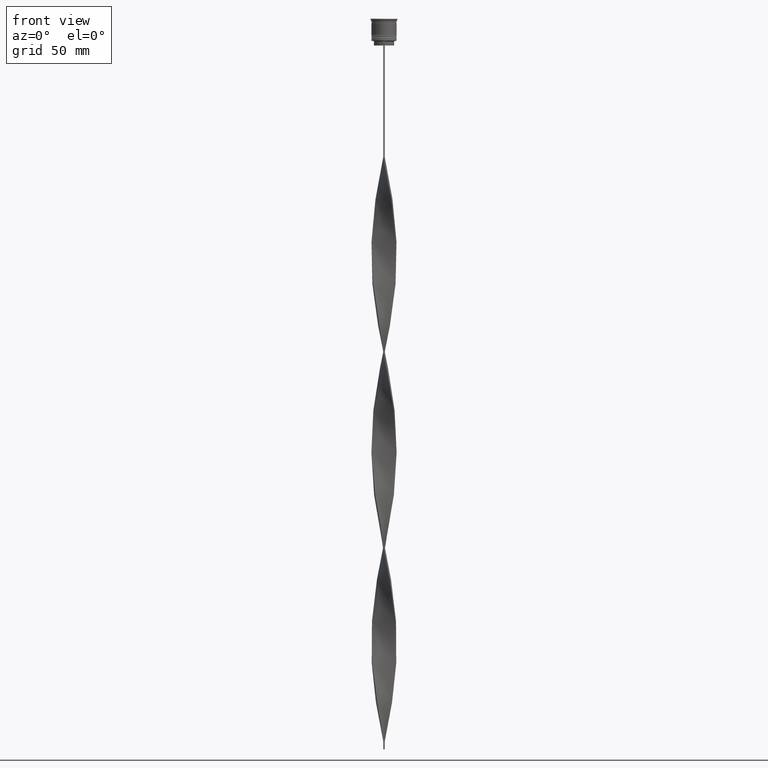
[diagram: clean part render]
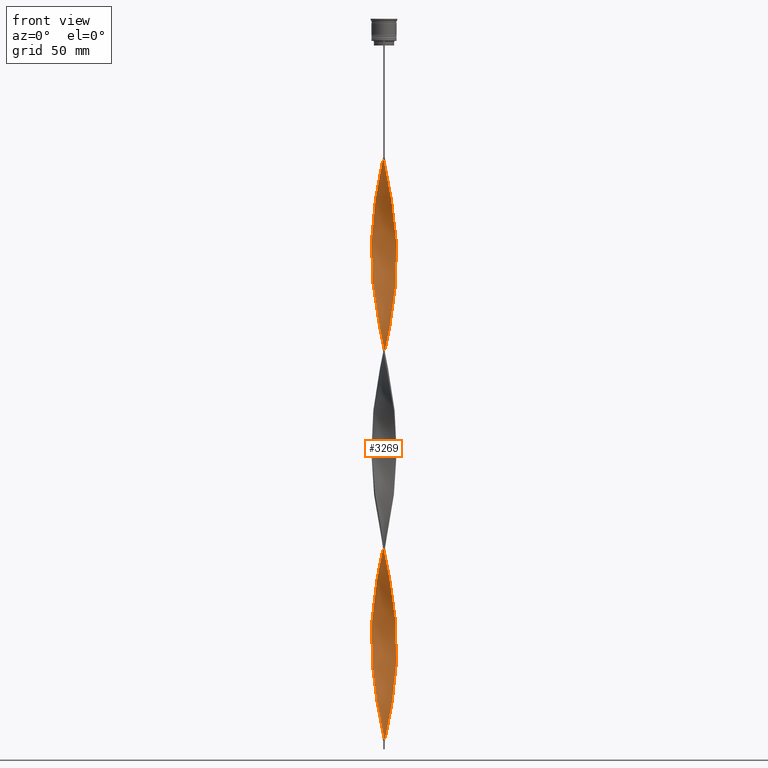
[diagram: same view with one face highlighted and labeled with its STEP entity id]
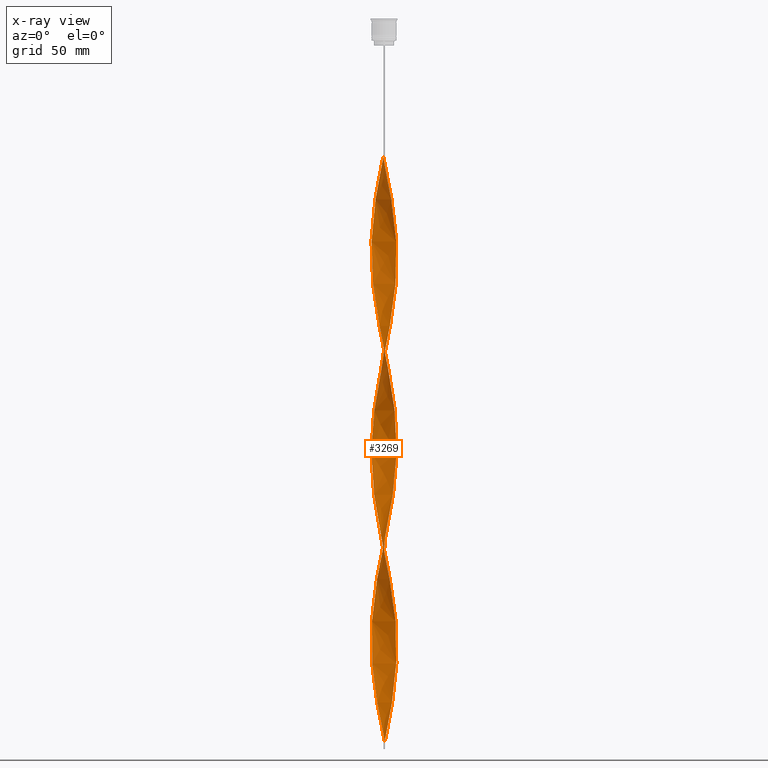
[diagram: x-ray of the same camera — body ghosted, the highlighted face saturated]
A machine part, front view. The second image highlights one B-rep face of the part: STEP entity #3269.
The next image is the same camera in x-ray: the body ghosted, the highlighted face saturated — about 0% of this face is hidden behind the body in this view.
In plain terms, the highlighted face is a freeform B-spline surface patch.
Its self-contained STEP definition (entity closure, byte-faithful):
#4 = CARTESIAN_POINT ( 'NONE',  ( -0.04721499136463314095, 8.034200936960294470, -214.3550724637681242 ) ) ;
#17 = CARTESIAN_POINT ( 'NONE',  ( -2.639832812930093198, 7.568439913203879321, -98.75362318840578268 ) ) ;
#18 = CARTESIAN_POINT ( 'NONE',  ( -6.590928236321648370, -4.594592357818170214, -418.6739130434783078 ) ) ;
#22 = CARTESIAN_POINT ( 'NONE',  ( 5.436559199960635524, 5.890146353472334617, -184.7826086956521578 ) ) ;
#36 = CARTESIAN_POINT ( 'NONE',  ( 4.583881302556717330, 6.575563261354193223, -437.4927536231883778 ) ) ;
#39 = CARTESIAN_POINT ( 'NONE',  ( -4.583881302556711113, 6.575563261354189670, -356.8405797101449366 ) ) ;
#47 = CARTESIAN_POINT ( 'NONE',  ( -2.213065603025611949, 7.723532520004569690, -225.1086956521739353 ) ) ;
#61 = CARTESIAN_POINT ( 'NONE',  ( 6.536472323464036727, 4.671738810705485356, -424.0507246376811281 ) ) ;
#64 = CARTESIAN_POINT ( 'NONE',  ( -2.213065603025611505, -7.723532520004561697, -445.5579710144927503 ) ) ;
#70 = CARTESIAN_POINT ( 'NONE',  ( 5.903909729730559164, -5.449262689030147655, -370.2826086956521863 ) ) ;
#82 = CARTESIAN_POINT ( 'NONE',  ( 0.4999999999999989453, -7.999999999999996447, -211.6666666666666572 ) ) ;
#84 = CARTESIAN_POINT ( 'NONE',  ( -3.729461898010225429, -7.095147211389621233, -437.4927536231883778 ) ) ;
#88 = CARTESIAN_POINT ( 'NONE',  ( 1.047214991364638914, 7.965799063039713523, -208.9782608695651902 ) ) ;
#89 = CARTESIAN_POINT ( 'NONE',  ( 7.111726286817910747, 3.738176450121950101, -418.6739130434783078 ) ) ;
#102 = CARTESIAN_POINT ( 'NONE',  ( -5.505411142615663778, -5.825843127888290951, -426.7391304347826235 ) ) ;
#108 = CARTESIAN_POINT ( 'NONE',  ( 0.04721499136463627733, -8.034200936960292694, -90.68840579710145278 ) ) ;
#128 = CARTESIAN_POINT ( 'NONE',  ( -5.436559199960629307, 5.890146353472331064, -362.2173913043478137 ) ) ;
#134 = CARTESIAN_POINT ( 'NONE',  ( 3.645814369522662357, 7.138489867120505039, -195.5362318840579405 ) ) ;
#135 = CARTESIAN_POINT ( 'NONE',  ( 3.729461898010225873, -7.095147211389628339, -356.8405797101449366 ) ) ;
#144 = CARTESIAN_POINT ( 'NONE',  ( -2.639832812930093198, 7.568439913203879321, -346.0869565217391255 ) ) ;
#153 = CARTESIAN_POINT ( 'NONE',  ( -0.5939902197518064364, 7.993570892838771869, -217.0434782608695627 ) ) ;
#163 = CARTESIAN_POINT ( 'NONE',  ( 3.645814369522654363, -7.138489867120501486, -227.7971014492753454 ) ) ;
#173 = CARTESIAN_POINT ( 'NONE',  ( 0.5939902197518079907, -7.993570892838771869, -93.37681159420290555 ) ) ;
#182 = CARTESIAN_POINT ( 'NONE',  ( 7.934400707984902823, 1.138106060579908485, -157.8985507246376585 ) ) ;
#190 = CARTESIAN_POINT ( 'NONE',  ( -0.4999999999999998890, 7.999999999999996447, -335.3333333333333144 ) ) ;
#198 = CARTESIAN_POINT ( 'NONE',  ( 7.875764468519596662, -1.588379043952502512, -391.7898550724637516 ) ) ;
#210 = CARTESIAN_POINT ( 'NONE',  ( -7.934400707984895718, 1.138106060579909817, -389.1014492753622562 ) ) ;
#215 = CARTESIAN_POINT ( 'NONE',  ( -0.4999999999999998890, -8.000000000000003553, -335.3333333333333144 ) ) ;
#228 = CARTESIAN_POINT ( 'NONE',  ( -7.370647570865068055, -3.150167358427297781, -410.6086956521738216 ) ) ;
#235 = CARTESIAN_POINT ( 'NONE',  ( -2.213065603025611949, 7.723532520004569690, -225.1086956521739353 ) ) ;
#236 = CARTESIAN_POINT ( 'NONE',  ( 7.333114266084573174, -3.236577692648032745, -254.6811594202898448 ) ) ;
#243 = CARTESIAN_POINT ( 'NONE',  ( 6.873049228353429463, -4.124462911050406966, -131.0144927536231876 ) ) ;
#263 = CARTESIAN_POINT ( 'NONE',  ( -7.856552120720867727, -1.680833937442847592, -284.2536231884058111 ) ) ;
#264 = CARTESIAN_POINT ( 'NONE',  ( 7.370647570865068055, 3.150167358427297337, -286.9420289855072497 ) ) ;
#270 = CARTESIAN_POINT ( 'NONE',  ( 6.247418983026105543, -5.021927523424159823, -125.6376811594202820 ) ) ;
#285 = CARTESIAN_POINT ( 'NONE',  ( -5.505411142615667330, 5.825843127888297168, -243.9275362318840337 ) ) ;
#286 = CARTESIAN_POINT ( 'NONE',  ( 6.187964285834317124, -5.095007163610168810, -243.9275362318840337 ) ) ;
#291 = CARTESIAN_POINT ( 'NONE',  ( -4.214783263011650405, 6.840045028850329167, -235.8623188405797464 ) ) ;
#297 = CARTESIAN_POINT ( 'NONE',  ( -5.505411142615663778, -5.825843127888290951, -426.7391304347826235 ) ) ;
#304 = CARTESIAN_POINT ( 'NONE',  ( 2.122137340211644130, 7.749009424445339356, -450.9347826086956275 ) ) ;
#307 = CARTESIAN_POINT ( 'NONE',  ( 7.111726286817905418, -3.738176450121948768, -251.9927536231884631 ) ) ;
#312 = CARTESIAN_POINT ( 'NONE',  ( 3.645814369522662357, 7.138489867120505039, -195.5362318840579405 ) ) ;
#313 = CARTESIAN_POINT ( 'NONE',  ( -7.875764468519589556, -1.588379043952500513, -155.2101449275362199 ) ) ;
#314 = CARTESIAN_POINT ( 'NONE',  ( 0.5000000000000008882, 8.000000000000003553, -458.9999999999999432 ) ) ;
#327 = CARTESIAN_POINT ( 'NONE',  ( -6.536472323464030509, 4.671738810705480915, -122.9492753623188577 ) ) ;
#329 = CARTESIAN_POINT ( 'NONE',  ( 7.554502245351245371, -2.734978935174111836, -257.3695652173913118 ) ) ;
#337 = CARTESIAN_POINT ( 'NONE',  ( -7.111726286817905418, 3.738176450121948768, -128.3260869565217206 ) ) ;
#340 = EDGE_LOOP ( 'NONE', ( #1317, #3350, #3638, #3820 ) ) ;
#349 = CARTESIAN_POINT ( 'NONE',  ( 7.934400707984902823, 1.138106060579908485, -405.2318840579709445 ) ) ;
#350 = CARTESIAN_POINT ( 'NONE',  ( 0.04721499136463921248, 8.034200936960287365, -332.6449275362318758 ) ) ;
#355 = CARTESIAN_POINT ( 'NONE',  ( -7.730944694932269989, 2.117190148262231286, -265.4347826086956275 ) ) ;
#367 = CARTESIAN_POINT ( 'NONE',  ( -7.155170220385199897, -3.654333464282636612, -165.9637681159420595 ) ) ;
#368 = CARTESIAN_POINT ( 'NONE',  ( -0.4999999999999998890, 7.999999999999996447, -335.3333333333333144 ) ) ;
#373 = CARTESIAN_POINT ( 'NONE',  ( -7.586124921344943317, 2.646001252571962947, -262.7463768115941889 ) ) ;
#389 = CARTESIAN_POINT ( 'NONE',  ( -3.729461898010225429, -7.095147211389621233, -190.1594202898550634 ) ) ;
#396 = CARTESIAN_POINT ( 'NONE',  ( 2.122137340211643686, 7.749009424445339356, -450.9347826086956275 ) ) ;
#412 = CARTESIAN_POINT ( 'NONE',  ( -1.140765448138979954, -7.952940848717248379, -203.6014492753623415 ) ) ;
#415 = CARTESIAN_POINT ( 'NONE',  ( -7.586124921344937988, -2.646001252571960283, -407.9202898550724399 ) ) ;
#419 = CARTESIAN_POINT ( 'NONE',  ( 6.247418983026105543, -5.021927523424159823, -125.6376811594202820 ) ) ;
#440 = CARTESIAN_POINT ( 'NONE',  ( 8.018693425164370225, -0.5011683390727733611, -397.1666666666666856 ) ) ;
#449 = CARTESIAN_POINT ( 'NONE',  ( -4.583881302556711113, 6.575563261354189670, -356.8405797101449366 ) ) ;
#457 = CARTESIAN_POINT ( 'NONE',  ( 5.839456248204610844, 5.518275516514861145, -182.0942028985507477 ) ) ;
#475 = CARTESIAN_POINT ( 'NONE',  ( 8.012249295248929926, -0.5953781837169733748, -268.1231884057971797 ) ) ;
#483 = CARTESIAN_POINT ( 'NONE',  ( -1.140765448138979510, 7.952940848717255484, -219.7318840579710297 ) ) ;
#485 = CARTESIAN_POINT ( 'NONE',  ( 7.155170220385205226, -3.654333464282639721, -381.0362318840579974 ) ) ;
#493 = CARTESIAN_POINT ( 'NONE',  ( 4.583881302556708448, -6.575563261354191447, -233.1739130434782510 ) ) ;
#500 = CARTESIAN_POINT ( 'NONE',  ( 5.505411142615667330, -5.825843127888297168, -120.2608695652173907 ) ) ;
#504 = CARTESIAN_POINT ( 'NONE',  ( 7.554502245351253364, 2.734978935174110948, -165.9637681159420595 ) ) ;
#508 = CARTESIAN_POINT ( 'NONE',  ( 4.214783263011647740, 6.840045028850321174, -311.1376811594204241 ) ) ;
#517 = CARTESIAN_POINT ( 'NONE',  ( 7.947228946841980779, -1.044773691512637548, -394.4782608695651902 ) ) ;
#525 = CARTESIAN_POINT ( 'NONE',  ( 6.824099305140973293, 4.204957630413717062, -174.0289855072463752 ) ) ;
#528 = VERTEX_POINT ( 'NONE', #3276 ) ;
#534 = CARTESIAN_POINT ( 'NONE',  ( 3.244140533008804006, 7.350249393928921293, -316.5144927536232444 ) ) ;
#545 = CARTESIAN_POINT ( 'NONE',  ( -7.947228946841980779, 1.044773691512640434, -270.8115942028985614 ) ) ;
#558 = CARTESIAN_POINT ( 'NONE',  ( -0.5939902197518075466, -7.993570892838764763, -453.6231884057970660 ) ) ;
#566 = CARTESIAN_POINT ( 'NONE',  ( 1.676915525582295841, -7.838236684360910367, -346.0869565217391255 ) ) ;
#567 = CARTESIAN_POINT ( 'NONE',  ( 8.012249295248929926, -0.5953781837169733748, -268.1231884057971229 ) ) ;
#575 = CARTESIAN_POINT ( 'NONE',  ( 5.106912555500779050, -6.202423566746448458, -117.5724637681159521 ) ) ;
#586 = CARTESIAN_POINT ( 'NONE',  ( 5.903909729730560052, -5.449262689030147655, -370.2826086956521863 ) ) ;
#587 = CARTESIAN_POINT ( 'NONE',  ( 1.676915525582294952, 7.838236684360903261, -324.5797101449275033 ) ) ;
#609 = CARTESIAN_POINT ( 'NONE',  ( 7.155170220385205226, -3.654333464282639721, -381.0362318840579974 ) ) ;
#610 = CARTESIAN_POINT ( 'NONE',  ( -0.04721499136463834512, -8.034200936960287365, -208.9782608695652186 ) ) ;
#617 = CARTESIAN_POINT ( 'NONE',  ( -6.824099305140974181, -4.204957630413716174, -297.6956521739130039 ) ) ;
#625 = CARTESIAN_POINT ( 'NONE',  ( -7.730944694932262884, -2.117190148262229510, -405.2318840579709445 ) ) ;
#631 =( BOUNDED_CURVE ( )  B_SPLINE_CURVE ( 2, ( #1271, #879, #2555, #3899, #3218, #2229, #2207, #2187, #2248, #1551, #1923, #575, #4221, #1902, #270, #2171, #243, #3839, #2577, #1572, #3545, #3175, #2906, #4269, #4247, #3919, #182, #841, #3501, #504, #2843, #857, #525, #1863, #3198, #639, #22, #2974, #3302, #4005, #312, #1948, #1971, #2339, #2598, #1637, #2622, #4, #658, #4313, #1316, #47, #3964, #1615, #2647, #291, #1031, #4288, #685, #3280, #1335, #2295, #3986, #1354, #987, #373, #355, #2950, #2317, #969, #3682, #2666, #2365, #1291, #4025, #3656, #1663, #1993, #617, #3327, #2036, #3016, #3000, #2017, #1006, #3344, #1683, #2683, #3704, #704, #1703, #3363, #3039, #3939, #944, #2272, #3613, #1382, #1102, #2711, #135, #1145, #792, #2454, #3795, #70, #2775, #1123, #2472, #485, #4071, #2750, #2122, #2101, #3065, #440, #4118, #1771, #2435, #4052, #3132, #748, #1820, #89, #3386, #1752, #3724, #1075, #3812, #1053, #3775, #725, #1467, #2794, #4092, #396, #2057, #3086, #817 ),
 .UNSPECIFIED., .F., .T. ) 
 B_SPLINE_CURVE_WITH_KNOTS ( ( 3, 2, 2, 2, 2, 2, 2, 2, 2, 2, 2, 2, 2, 2, 2, 2, 2, 2, 2, 2, 2, 2, 2, 2, 2, 2, 2, 2, 2, 2, 2, 2, 2, 2, 2, 2, 2, 2, 2, 2, 2, 2, 2, 2, 2, 2, 2, 2, 2, 2, 2, 2, 2, 2, 2, 2, 2, 2, 2, 2, 2, 2, 2, 2, 2, 2, 2, 2, 2, 3 ),
 ( 0.000000000000000000, 0.01086956521739130405, 0.02173913043478260809, 0.03260869565217391214, 0.04347826086956521618, 0.05434782608695652023, 0.06521739130434782428, 0.07608695652173913526, 0.08695652173913043237, 0.09782608695652174335, 0.1086956521739130405, 0.1195652173913043653, 0.1304347826086956486, 0.1413043478260869457, 0.1521739130434782705, 0.1630434782608695676, 0.1739130434782608647, 0.1847826086956521896, 0.1956521739130434867, 0.2065217391304347838, 0.2173913043478260809, 0.2282608695652173780, 0.2391304347826087306, 0.2500000000000000000, 0.2608695652173912971, 0.2717391304347825942, 0.2826086956521738913, 0.2934782608695652439, 0.3043478260869565410, 0.3152173913043478382, 0.3260869565217391353, 0.3369565217391304324, 0.3478260869565217295, 0.3586956521739130266, 0.3695652173913043792, 0.3804347826086956208, 0.3913043478260869734, 0.4021739130434782705, 0.4130434782608695676, 0.4239130434782609202, 0.4347826086956521618, 0.4456521739130434590, 0.4565217391304347561, 0.4673913043478261087, 0.4782608695652174613, 0.4891304347826087029, 0.5000000000000000000, 0.5108695652173913526, 0.5217391304347825942, 0.5326086956521739468, 0.5434782608695651884, 0.5543478260869565410, 0.5652173913043477826, 0.5760869565217391353, 0.5869565217391304879, 0.5978260869565217295, 0.6086956521739130821, 0.6195652173913043237, 0.6304347826086956763, 0.6413043478260869179, 0.6521739130434782705, 0.6630434782608695121, 0.6739130434782608647, 0.6847826086956522174, 0.6956521739130434590, 0.7065217391304349226, 0.7173913043478260532, 0.7282608695652174058, 0.7391304347826087584, 0.7500000000000000000 ),
 .UNSPECIFIED. ) 
 CURVE ( )  GEOMETRIC_REPRESENTATION_ITEM ( )  RATIONAL_B_SPLINE_CURVE ( ( 1.000000000000000000, 0.9976687691905391508, 1.000000000000000000, 0.9976687691905391508, 1.000000000000000000, 0.9976687691905391508, 1.000000000000000000, 0.9976687691905391508, 1.000000000000000000, 0.9976687691905391508, 1.000000000000000000, 0.9976687691905391508, 1.000000000000000000, 0.9976687691905391508, 1.000000000000000000, 0.9976687691905391508, 1.000000000000000000, 0.9976687691905391508, 1.000000000000000000, 0.9976687691905391508, 1.000000000000000000, 0.9976687691905391508, 1.000000000000000000, 0.9976687691905391508, 1.000000000000000000, 0.9976687691905391508, 1.000000000000000000, 0.9976687691905391508, 1.000000000000000000, 0.9976687691905391508, 1.000000000000000000, 0.9976687691905391508, 1.000000000000000000, 0.9976687691905391508, 1.000000000000000000, 0.9976687691905391508, 1.000000000000000000, 0.9976687691905391508, 1.000000000000000000, 0.9976687691905391508, 1.000000000000000000, 0.9976687691905391508, 1.000000000000000000, 0.9976687691905391508, 1.000000000000000000, 0.9976687691905391508, 1.000000000000000000, 0.9976687691905391508, 1.000000000000000000, 0.9976687691905391508, 1.000000000000000000, 0.9976687691905391508, 1.000000000000000000, 0.9976687691905391508, 1.000000000000000000, 0.9976687691905391508, 1.000000000000000000, 0.9976687691905391508, 1.000000000000000000, 0.9976687691905391508, 1.000000000000000000, 0.9976687691905391508, 1.000000000000000000, 0.9976687691905391508, 1.000000000000000000, 0.9976687691905391508, 1.000000000000000000, 0.9976687691905391508, 1.000000000000000000, 0.9976687691905391508, 1.000000000000000000, 0.9976687691905391508, 1.000000000000000000, 0.9976687691905391508, 1.000000000000000000, 0.9976687691905391508, 1.000000000000000000, 0.9976687691905391508, 1.000000000000000000, 0.9976687691905391508, 1.000000000000000000, 0.9976687691905391508, 1.000000000000000000, 0.9976687691905391508, 1.000000000000000000, 0.9976687691905391508, 1.000000000000000000, 0.9976687691905391508, 1.000000000000000000, 0.9976687691905391508, 1.000000000000000000, 0.9976687691905391508, 1.000000000000000000, 0.9976687691905391508, 1.000000000000000000, 0.9976687691905391508, 1.000000000000000000, 0.9976687691905391508, 1.000000000000000000, 0.9976687691905391508, 1.000000000000000000, 0.9976687691905391508, 1.000000000000000000, 0.9976687691905391508, 1.000000000000000000, 0.9976687691905391508, 1.000000000000000000, 0.9976687691905391508, 1.000000000000000000, 0.9976687691905391508, 1.000000000000000000, 0.9976687691905391508, 1.000000000000000000, 0.9976687691905391508, 1.000000000000000000, 0.9976687691905391508, 1.000000000000000000, 0.9976687691905391508, 1.000000000000000000, 0.9976687691905391508, 1.000000000000000000, 0.9976687691905391508, 1.000000000000000000, 0.9976687691905391508, 1.000000000000000000, 0.9976687691905391508, 1.000000000000000000, 0.9976687691905391508, 1.000000000000000000, 0.9976687691905391508, 1.000000000000000000, 0.9976687691905391508, 1.000000000000000000, 0.9976687691905391508, 1.000000000000000000, 0.9976687691905391508, 1.000000000000000000, 0.9976687691905391508, 1.000000000000000000 ) ) 
 REPRESENTATION_ITEM ( '' )  );
#633 = CARTESIAN_POINT ( 'NONE',  ( -7.111726286817904530, 3.738176450121948324, -128.3260869565217206 ) ) ;
#634 = CARTESIAN_POINT ( 'NONE',  ( -2.728603068017206645, -7.536890956966740163, -195.5362318840579405 ) ) ;
#639 = CARTESIAN_POINT ( 'NONE',  ( 5.839456248204609956, 5.518275516514862034, -182.0942028985507477 ) ) ;
#650 = CARTESIAN_POINT ( 'NONE',  ( 5.436559199960635524, 5.890146353472334617, -432.1159420289855007 ) ) ;
#651 = EDGE_CURVE ( 'NONE', #3330, #3176, #2087, .T. ) ;
#652 = CARTESIAN_POINT ( 'NONE',  ( 0.4999999999999989453, -7.999999999999996447, -211.6666666666666572 ) ) ;
#658 = CARTESIAN_POINT ( 'NONE',  ( -0.5939902197518064364, 7.993570892838771869, -217.0434782608695627 ) ) ;
#659 = CARTESIAN_POINT ( 'NONE',  ( 0.4999999999999989453, -7.999999999999996447, -458.9999999999999432 ) ) ;
#674 = CARTESIAN_POINT ( 'NONE',  ( -5.903909729730553835, -5.449262689030142326, -176.7173913043478137 ) ) ;
#677 = CARTESIAN_POINT ( 'NONE',  ( -1.584676165788137636, 7.857404243742519334, -340.7101449275362484 ) ) ;
#685 = CARTESIAN_POINT ( 'NONE',  ( -5.505411142615667330, 5.825843127888297168, -243.9275362318840337 ) ) ;
#693 = B_SPLINE_CURVE_WITH_KNOTS ( 'NONE', 3,
 ( #314, #2648, #2319, #659 ),
 .UNSPECIFIED., .F., .F.,
 ( 4, 4 ),
 ( 0.000000000000000000, 1.000000000000000000 ),
 .UNSPECIFIED. ) ;
#697 = CARTESIAN_POINT ( 'NONE',  ( -5.436559199960629307, 5.890146353472331064, -114.8840579710144851 ) ) ;
#699 = CARTESIAN_POINT ( 'NONE',  ( -6.247418983026100214, -5.021927523424156270, -421.3623188405797464 ) ) ;
#704 = CARTESIAN_POINT ( 'NONE',  ( -2.122137340211641021, -7.749009424445339356, -327.2681159420290555 ) ) ;
#719 = CARTESIAN_POINT ( 'NONE',  ( -7.586124921344937988, -2.646001252571960283, -160.5869565217391823 ) ) ;
#720 = CARTESIAN_POINT ( 'NONE',  ( -1.140765448138980176, -7.952940848717247491, -450.9347826086956275 ) ) ;
#725 = CARTESIAN_POINT ( 'NONE',  ( 4.134100453396771790, 6.889109332278581022, -440.1811594202898164 ) ) ;
#740 = CARTESIAN_POINT ( 'NONE',  ( 1.047214991364632919, -7.965799063039709971, -214.3550724637681242 ) ) ;
#743 = CARTESIAN_POINT ( 'NONE',  ( -7.856552120720863286, 1.680833937442849368, -386.4130434782609314 ) ) ;
#748 = CARTESIAN_POINT ( 'NONE',  ( 7.554502245351253364, 2.734978935174110948, -413.2971014492753739 ) ) ;
#770 = CARTESIAN_POINT ( 'NONE',  ( 7.934400707984902823, 1.138106060579908485, -157.8985507246376585 ) ) ;
#782 = CARTESIAN_POINT ( 'NONE',  ( 7.875764468519589556, 1.588379043952496072, -278.8768115942028203 ) ) ;
#790 = CARTESIAN_POINT ( 'NONE',  ( 5.903909729730560052, -5.449262689030147655, -122.9492753623188577 ) ) ;
#792 = CARTESIAN_POINT ( 'NONE',  ( 4.660847909256214727, -6.521234297798388369, -362.2173913043478137 ) ) ;
#805 = CARTESIAN_POINT ( 'NONE',  ( 4.660847909256212951, 6.521234297798380375, -308.4492753623188150 ) ) ;
#814 = CARTESIAN_POINT ( 'NONE',  ( 1.584676165788138968, 7.857404243742526440, -206.2898550724637516 ) ) ;
#817 = CARTESIAN_POINT ( 'NONE',  ( 0.5000000000000008882, 8.000000000000003553, -458.9999999999999432 ) ) ;
#829 = CARTESIAN_POINT ( 'NONE',  ( 7.370647570865068055, 3.150167358427297337, -286.9420289855072497 ) ) ;
#841 = CARTESIAN_POINT ( 'NONE',  ( 7.856552120720868615, 1.680833937442848480, -160.5869565217391539 ) ) ;
#846 = CARTESIAN_POINT ( 'NONE',  ( -7.554502245351247147, 2.734978935174109616, -381.0362318840579974 ) ) ;
#852 = CARTESIAN_POINT ( 'NONE',  ( 1.140765448138979288, -7.952940848717255484, -96.06521739130434412 ) ) ;
#857 = CARTESIAN_POINT ( 'NONE',  ( 7.111726286817910747, 3.738176450121950101, -171.3405797101449366 ) ) ;
#863 = CARTESIAN_POINT ( 'NONE',  ( 7.586124921344937988, 2.646001252571958950, -284.2536231884058111 ) ) ;
#872 = CARTESIAN_POINT ( 'NONE',  ( -2.728603068017204425, 7.536890956966749044, -227.7971014492753454 ) ) ;
#879 = CARTESIAN_POINT ( 'NONE',  ( 0.04721499136463628427, -8.034200936960294470, -90.68840579710145278 ) ) ;
#896 = CARTESIAN_POINT ( 'NONE',  ( 5.505411142615667330, -5.825843127888297168, -367.5942028985506909 ) ) ;
#897 = CARTESIAN_POINT ( 'NONE',  ( 2.728603068017207534, 7.536890956966740163, -319.2028985507245693 ) ) ;
#907 = CARTESIAN_POINT ( 'NONE',  ( -6.247418983026100214, -5.021927523424156270, -421.3623188405797464 ) ) ;
#910 =( BOUNDED_SURFACE ( )  B_SPLINE_SURFACE ( 1, 2, ( 
 ( #2508, #108, #173, #852, #2772, #4153, #2181, #1421, #1161, #4117, #4136, #2491, #500, #790, #419, #2165, #2748, #1144, #1835, #3496, #3834, #1101, #4178, #1501, #3169, #3774, #770, #3794, #2792, #1122, #2453, #2834, #2121, #3448, #1819, #457, #1484, #1793, #1750, #3129, #134, #2470, #3085, #3810, #814, #88, #2148, #3477, #153, #483, #3152, #235, #872, #2199, #1523, #1565, #3602, #2896, #285, #1915, #1591, #3252, #4196, #2943, #3578, #2855, #2262, #2240, #545, #1608, #2222, #936, #2923, #263, #4239, #2570, #4281, #3866, #3932, #1244, #4262, #3911, #1217, #3538, #1198, #3210, #2874, #2611, #3558, #2525, #3890, #1877, #215, #3274, #3514, #1284, #566, #1263, #3190, #1543, #4214, #916, #1853, #2545, #896, #586, #3953, #2591, #1895, #609, #1942, #3229, #963, #198, #517, #981, #4018, #3697, #349, #3058, #3649, #2051, #1395, #3317, #1695, #61, #3294, #3030, #650, #1676, #36, #2377, #2660, #2724, #2702, #304, #3010, #3717, #4042 ),
 ( #2677, #4065, #2331, #3628, #17, #1628, #1370, #3671, #4305, #1349, #697, #2289, #2964, #327, #2029, #633, #1654, #2310, #3378, #1020, #3979, #1964, #1307, #1985, #2641, #3998, #2991, #719, #4326, #367, #1328, #2356, #1001, #674, #2009, #1044, #3339, #3358, #389, #1722, #2072, #3740, #1743, #412, #1414, #2400, #82, #740, #3077, #3406, #1067, #2742, #163, #4189, #493, #3506, #1827, #1475, #2463, #1781, #3467, #3143, #2868, #2480, #1461, #4143, #3120, #475, #3526, #3785, #3489, #782, #2518, #863, #829, #2784, #2111, #3802, #3439, #1515, #4128, #2802, #805, #508, #1173, #534, #1136, #2190, #1812, #1492, #2135, #3179, #190, #1843, #3161, #1870, #144, #1151, #2824, #4168, #449, #1190, #128, #3860, #3824, #2159, #2175, #2502, #3843, #846, #2848, #3203, #210, #1537, #4208, #1210, #1956, #3621, #625, #3880, #228, #3287, #2214, #1645, #907, #3924, #297, #3267, #4228, #1602, #955, #1934, #3903, #4274, #2233, #1889, #558, #1621, #2956 ) ),
 .UNSPECIFIED., .F., .F., .F. ) 
 B_SPLINE_SURFACE_WITH_KNOTS ( ( 2, 2 ),
 ( 3, 2, 2, 2, 2, 2, 2, 2, 2, 2, 2, 2, 2, 2, 2, 2, 2, 2, 2, 2, 2, 2, 2, 2, 2, 2, 2, 2, 2, 2, 2, 2, 2, 2, 2, 2, 2, 2, 2, 2, 2, 2, 2, 2, 2, 2, 2, 2, 2, 2, 2, 2, 2, 2, 2, 2, 2, 2, 2, 2, 2, 2, 2, 2, 2, 2, 2, 2, 2, 3 ),
 ( 0.000000000000000000, 1.000000000000000000 ),
 ( 0.000000000000000000, 0.01086956521739130405, 0.02173913043478260809, 0.03260869565217391214, 0.04347826086956521618, 0.05434782608695652023, 0.06521739130434782428, 0.07608695652173913526, 0.08695652173913043237, 0.09782608695652174335, 0.1086956521739130405, 0.1195652173913043514, 0.1304347826086956486, 0.1413043478260869457, 0.1521739130434782705, 0.1630434782608695676, 0.1739130434782608647, 0.1847826086956521618, 0.1956521739130434867, 0.2065217391304347838, 0.2173913043478260809, 0.2282608695652173780, 0.2391304347826087029, 0.2500000000000000000, 0.2608695652173912971, 0.2717391304347825942, 0.2826086956521738913, 0.2934782608695652439, 0.3043478260869565410, 0.3152173913043478382, 0.3260869565217391353, 0.3369565217391304324, 0.3478260869565217295, 0.3586956521739130266, 0.3695652173913043237, 0.3804347826086956763, 0.3913043478260869734, 0.4021739130434782705, 0.4130434782608695676, 0.4239130434782608647, 0.4347826086956521618, 0.4456521739130434590, 0.4565217391304347561, 0.4673913043478261087, 0.4782608695652174058, 0.4891304347826087029, 0.5000000000000000000, 0.5108695652173913526, 0.5217391304347825942, 0.5326086956521739468, 0.5434782608695651884, 0.5543478260869565410, 0.5652173913043477826, 0.5760869565217391353, 0.5869565217391304879, 0.5978260869565217295, 0.6086956521739130821, 0.6195652173913043237, 0.6304347826086956763, 0.6413043478260869179, 0.6521739130434782705, 0.6630434782608695121, 0.6739130434782608647, 0.6847826086956522174, 0.6956521739130434590, 0.7065217391304348116, 0.7173913043478260532, 0.7282608695652174058, 0.7391304347826086474, 0.7500000000000000000 ),
 .UNSPECIFIED. ) 
 GEOMETRIC_REPRESENTATION_ITEM ( )  RATIONAL_B_SPLINE_SURFACE ( (
 ( 1.000000000000000000, 0.9976687691905391508, 1.000000000000000000, 0.9976687691905391508, 1.000000000000000000, 0.9976687691905391508, 1.000000000000000000, 0.9976687691905391508, 1.000000000000000000, 0.9976687691905391508, 1.000000000000000000, 0.9976687691905391508, 1.000000000000000000, 0.9976687691905391508, 1.000000000000000000, 0.9976687691905391508, 1.000000000000000000, 0.9976687691905391508, 1.000000000000000000, 0.9976687691905391508, 1.000000000000000000, 0.9976687691905391508, 1.000000000000000000, 0.9976687691905391508, 1.000000000000000000, 0.9976687691905391508, 1.000000000000000000, 0.9976687691905391508, 1.000000000000000000, 0.9976687691905391508, 1.000000000000000000, 0.9976687691905391508, 1.000000000000000000, 0.9976687691905391508, 1.000000000000000000, 0.9976687691905391508, 1.000000000000000000, 0.9976687691905391508, 1.000000000000000000, 0.9976687691905391508, 1.000000000000000000, 0.9976687691905391508, 1.000000000000000000, 0.9976687691905391508, 1.000000000000000000, 0.9976687691905391508, 1.000000000000000000, 0.9976687691905391508, 1.000000000000000000, 0.9976687691905391508, 1.000000000000000000, 0.9976687691905391508, 1.000000000000000000, 0.9976687691905391508, 1.000000000000000000, 0.9976687691905391508, 1.000000000000000000, 0.9976687691905391508, 1.000000000000000000, 0.9976687691905391508, 1.000000000000000000, 0.9976687691905391508, 1.000000000000000000, 0.9976687691905391508, 1.000000000000000000, 0.9976687691905391508, 1.000000000000000000, 0.9976687691905391508, 1.000000000000000000, 0.9976687691905391508, 1.000000000000000000, 0.9976687691905391508, 1.000000000000000000, 0.9976687691905391508, 1.000000000000000000, 0.9976687691905391508, 1.000000000000000000, 0.9976687691905391508, 1.000000000000000000, 0.9976687691905391508, 1.000000000000000000, 0.9976687691905391508, 1.000000000000000000, 0.9976687691905391508, 1.000000000000000000, 0.9976687691905391508, 1.000000000000000000, 0.9976687691905391508, 1.000000000000000000, 0.9976687691905391508, 1.000000000000000000, 0.9976687691905391508, 1.000000000000000000, 0.9976687691905391508, 1.000000000000000000, 0.9976687691905391508, 1.000000000000000000, 0.9976687691905391508, 1.000000000000000000, 0.9976687691905391508, 1.000000000000000000, 0.9976687691905391508, 1.000000000000000000, 0.9976687691905391508, 1.000000000000000000, 0.9976687691905391508, 1.000000000000000000, 0.9976687691905391508, 1.000000000000000000, 0.9976687691905391508, 1.000000000000000000, 0.9976687691905391508, 1.000000000000000000, 0.9976687691905391508, 1.000000000000000000, 0.9976687691905391508, 1.000000000000000000, 0.9976687691905391508, 1.000000000000000000, 0.9976687691905391508, 1.000000000000000000, 0.9976687691905391508, 1.000000000000000000, 0.9976687691905391508, 1.000000000000000000, 0.9976687691905391508, 1.000000000000000000, 0.9976687691905391508, 1.000000000000000000, 0.9976687691905391508, 1.000000000000000000, 0.9976687691905391508, 1.000000000000000000, 0.9976687691905391508, 1.000000000000000000, 0.9976687691905391508, 1.000000000000000000, 0.9976687691905391508, 1.000000000000000000),
 ( 1.000000000000000000, 0.9976687691905391508, 1.000000000000000000, 0.9976687691905391508, 1.000000000000000000, 0.9976687691905391508, 1.000000000000000000, 0.9976687691905391508, 1.000000000000000000, 0.9976687691905391508, 1.000000000000000000, 0.9976687691905391508, 1.000000000000000000, 0.9976687691905391508, 1.000000000000000000, 0.9976687691905391508, 1.000000000000000000, 0.9976687691905391508, 1.000000000000000000, 0.9976687691905391508, 1.000000000000000000, 0.9976687691905391508, 1.000000000000000000, 0.9976687691905391508, 1.000000000000000000, 0.9976687691905391508, 1.000000000000000000, 0.9976687691905391508, 1.000000000000000000, 0.9976687691905391508, 1.000000000000000000, 0.9976687691905391508, 1.000000000000000000, 0.9976687691905391508, 1.000000000000000000, 0.9976687691905391508, 1.000000000000000000, 0.9976687691905391508, 1.000000000000000000, 0.9976687691905391508, 1.000000000000000000, 0.9976687691905391508, 1.000000000000000000, 0.9976687691905391508, 1.000000000000000000, 0.9976687691905391508, 1.000000000000000000, 0.9976687691905391508, 1.000000000000000000, 0.9976687691905391508, 1.000000000000000000, 0.9976687691905391508, 1.000000000000000000, 0.9976687691905391508, 1.000000000000000000, 0.9976687691905391508, 1.000000000000000000, 0.9976687691905391508, 1.000000000000000000, 0.9976687691905391508, 1.000000000000000000, 0.9976687691905391508, 1.000000000000000000, 0.9976687691905391508, 1.000000000000000000, 0.9976687691905391508, 1.000000000000000000, 0.9976687691905391508, 1.000000000000000000, 0.9976687691905391508, 1.000000000000000000, 0.9976687691905391508, 1.000000000000000000, 0.9976687691905391508, 1.000000000000000000, 0.9976687691905391508, 1.000000000000000000, 0.9976687691905391508, 1.000000000000000000, 0.9976687691905391508, 1.000000000000000000, 0.9976687691905391508, 1.000000000000000000, 0.9976687691905391508, 1.000000000000000000, 0.9976687691905391508, 1.000000000000000000, 0.9976687691905391508, 1.000000000000000000, 0.9976687691905391508, 1.000000000000000000, 0.9976687691905391508, 1.000000000000000000, 0.9976687691905391508, 1.000000000000000000, 0.9976687691905391508, 1.000000000000000000, 0.9976687691905391508, 1.000000000000000000, 0.9976687691905391508, 1.000000000000000000, 0.9976687691905391508, 1.000000000000000000, 0.9976687691905391508, 1.000000000000000000, 0.9976687691905391508, 1.000000000000000000, 0.9976687691905391508, 1.000000000000000000, 0.9976687691905391508, 1.000000000000000000, 0.9976687691905391508, 1.000000000000000000, 0.9976687691905391508, 1.000000000000000000, 0.9976687691905391508, 1.000000000000000000, 0.9976687691905391508, 1.000000000000000000, 0.9976687691905391508, 1.000000000000000000, 0.9976687691905391508, 1.000000000000000000, 0.9976687691905391508, 1.000000000000000000, 0.9976687691905391508, 1.000000000000000000, 0.9976687691905391508, 1.000000000000000000, 0.9976687691905391508, 1.000000000000000000, 0.9976687691905391508, 1.000000000000000000, 0.9976687691905391508, 1.000000000000000000, 0.9976687691905391508, 1.000000000000000000, 0.9976687691905391508, 1.000000000000000000) ) ) 
 REPRESENTATION_ITEM ( '' )  SURFACE ( )  );
#916 = CARTESIAN_POINT ( 'NONE',  ( 4.214783263011650405, -6.840045028850329167, -359.5289855072463752 ) ) ;
#918 = CARTESIAN_POINT ( 'NONE',  ( 5.505411142615667330, 5.825843127888289175, -303.0724637681159379 ) ) ;
#925 = CARTESIAN_POINT ( 'NONE',  ( -0.4999999999999998890, 7.999999999999996447, -88.00000000000000000 ) ) ;
#936 = CARTESIAN_POINT ( 'NONE',  ( -8.012249295248937031, -0.5953781837169641600, -278.8768115942028203 ) ) ;
#938 = CARTESIAN_POINT ( 'NONE',  ( 6.873049228353425910, 4.124462911050398972, -292.3188405797101268 ) ) ;
#944 = CARTESIAN_POINT ( 'NONE',  ( 0.5939902197518079907, -7.993570892838771869, -340.7101449275362484 ) ) ;
#946 = CARTESIAN_POINT ( 'NONE',  ( -5.033662151716653987, 6.262017190429803648, -112.1956521739130466 ) ) ;
#955 = CARTESIAN_POINT ( 'NONE',  ( -3.729461898010225429, -7.095147211389621233, -437.4927536231883778 ) ) ;
#963 = CARTESIAN_POINT ( 'NONE',  ( 7.730944694932269989, -2.117190148262233951, -389.1014492753622562 ) ) ;
#969 = CARTESIAN_POINT ( 'NONE',  ( -8.018693425164370225, 0.5011683390727743603, -273.4999999999999432 ) ) ;
#970 = CARTESIAN_POINT ( 'NONE',  ( -7.554502245351246259, 2.734978935174109616, -133.7028985507246546 ) ) ;
#981 = CARTESIAN_POINT ( 'NONE',  ( 8.018693425164372002, -0.5011683390727734722, -397.1666666666666288 ) ) ;
#982 = CARTESIAN_POINT ( 'NONE',  ( -5.903909729730553835, -5.449262689030142326, -176.7173913043478137 ) ) ;
#987 = CARTESIAN_POINT ( 'NONE',  ( -7.370647570865074272, 3.150167358427302222, -260.0579710144927503 ) ) ;
#988 = CARTESIAN_POINT ( 'NONE',  ( -2.639832812930093198, 7.568439913203879321, -98.75362318840578268 ) ) ;
#1001 = CARTESIAN_POINT ( 'NONE',  ( -6.247418983026100214, -5.021927523424156270, -174.0289855072463752 ) ) ;
#1006 = CARTESIAN_POINT ( 'NONE',  ( -4.583881302556714665, -6.575563261354195888, -313.8260869565216922 ) ) ;
#1007 = CARTESIAN_POINT ( 'NONE',  ( -1.047214991364635805, 7.965799063039706418, -90.68840579710145278 ) ) ;
#1020 = CARTESIAN_POINT ( 'NONE',  ( -7.856552120720862398, 1.680833937442849368, -139.0797101449275317 ) ) ;
#1024 = CARTESIAN_POINT ( 'NONE',  ( -7.934400707984895718, 1.138106060579909817, -389.1014492753622562 ) ) ;
#1031 = CARTESIAN_POINT ( 'NONE',  ( -4.660847909256214727, 6.521234297798387480, -238.5507246376811565 ) ) ;
#1044 = CARTESIAN_POINT ( 'NONE',  ( -5.106912555500773720, -6.202423566746443129, -182.0942028985507477 ) ) ;
#1053 = CARTESIAN_POINT ( 'NONE',  ( 5.033662151716659316, 6.262017190429808977, -434.8043478260869392 ) ) ;
#1067 = CARTESIAN_POINT ( 'NONE',  ( 2.639832812930090977, -7.568439913203879321, -222.4202898550724399 ) ) ;
#1069 = CARTESIAN_POINT ( 'NONE',  ( -6.873049228353423246, -4.124462911050403413, -415.9855072463768124 ) ) ;
#1075 = CARTESIAN_POINT ( 'NONE',  ( 5.839456248204609956, 5.518275516514862034, -429.4275362318840621 ) ) ;
#1093 = VECTOR ( 'NONE', #1143, 1000.000000000000000 ) ;
#1101 = CARTESIAN_POINT ( 'NONE',  ( 7.875764468519596662, -1.588379043952502512, -144.4565217391304657 ) ) ;
#1102 = CARTESIAN_POINT ( 'NONE',  ( 2.728603068017206645, -7.536890956966748156, -351.4637681159420595 ) ) ;
#1122 = CARTESIAN_POINT ( 'NONE',  ( 7.554502245351254253, 2.734978935174110948, -165.9637681159420595 ) ) ;
#1123 = CARTESIAN_POINT ( 'NONE',  ( 6.590928236321652811, -4.594592357818173767, -375.6594202898551771 ) ) ;
#1136 = CARTESIAN_POINT ( 'NONE',  ( 2.728603068017207534, 7.536890956966740163, -319.2028985507245693 ) ) ;
#1143 = DIRECTION ( 'NONE',  ( 0.000000000000000000, 1.000000000000000000, 0.000000000000000000 ) ) ;
#1144 = CARTESIAN_POINT ( 'NONE',  ( 7.155170220385205226, -3.654333464282639721, -133.7028985507246546 ) ) ;
#1145 = CARTESIAN_POINT ( 'NONE',  ( 4.214783263011651293, -6.840045028850329167, -359.5289855072463752 ) ) ;
#1151 = CARTESIAN_POINT ( 'NONE',  ( -3.157528285648546706, 7.387870401962427280, -348.7753623188405072 ) ) ;
#1159 = EDGE_CURVE ( 'NONE', #528, #1890, #631, .T. ) ;
#1161 = CARTESIAN_POINT ( 'NONE',  ( 3.729461898010225873, -7.095147211389628339, -109.5072463768115796 ) ) ;
#1173 = CARTESIAN_POINT ( 'NONE',  ( 3.729461898010222320, 7.095147211389622122, -313.8260869565216922 ) ) ;
#1190 = CARTESIAN_POINT ( 'NONE',  ( -5.033662151716653987, 6.262017190429803648, -359.5289855072463752 ) ) ;
#1198 = CARTESIAN_POINT ( 'NONE',  ( -4.583881302556714665, -6.575563261354195888, -313.8260869565216922 ) ) ;
#1210 = CARTESIAN_POINT ( 'NONE',  ( -8.018693425164364896, -0.5011683390727723619, -397.1666666666666288 ) ) ;
#1217 = CARTESIAN_POINT ( 'NONE',  ( -5.436559199960636413, -5.890146353472333729, -308.4492753623188150 ) ) ;
#1244 = CARTESIAN_POINT ( 'NONE',  ( -6.536472323464036727, -4.671738810705484468, -300.3840579710144993 ) ) ;
#1245 = CARTESIAN_POINT ( 'NONE',  ( -4.214783263011647740, -6.840045028850322950, -187.4710144927535964 ) ) ;
#1251 = CARTESIAN_POINT ( 'NONE',  ( -3.645814369522656584, 7.138489867120500598, -104.1304347826086882 ) ) ;
#1263 = CARTESIAN_POINT ( 'NONE',  ( 2.213065603025611949, -7.723532520004569690, -348.7753623188405072 ) ) ;
#1265 = CARTESIAN_POINT ( 'NONE',  ( 5.436559199960629307, -5.890146353472330176, -238.5507246376811565 ) ) ;
#1271 = CARTESIAN_POINT ( 'NONE',  ( -0.4999999999999998890, -8.000000000000003553, -88.00000000000000000 ) ) ;
#1284 = CARTESIAN_POINT ( 'NONE',  ( 1.140765448138979288, -7.952940848717255484, -343.3985507246376869 ) ) ;
#1285 = CARTESIAN_POINT ( 'NONE',  ( -3.244140533008800009, -7.350249393928923958, -192.8478260869565020 ) ) ;
#1291 = CARTESIAN_POINT ( 'NONE',  ( -7.856552120720868615, -1.680833937442847592, -284.2536231884058111 ) ) ;
#1307 = CARTESIAN_POINT ( 'NONE',  ( -8.015471360206644746, 0.04710492232209832070, -147.1449275362318758 ) ) ;
#1308 = CARTESIAN_POINT ( 'NONE',  ( 5.839456248204604627, -5.518275516514858481, -241.2391304347826235 ) ) ;
#1316 = CARTESIAN_POINT ( 'NONE',  ( -1.676915525582294064, 7.838236684360910367, -222.4202898550724399 ) ) ;
#1317 = ORIENTED_EDGE ( 'NONE', *, *, #1555, .T. ) ;
#1328 = CARTESIAN_POINT ( 'NONE',  ( -6.873049228353423246, -4.124462911050403413, -168.6521739130434696 ) ) ;
#1329 = CARTESIAN_POINT ( 'NONE',  ( 5.903909729730553835, 5.449262689030141438, -300.3840579710145562 ) ) ;
#1335 = CARTESIAN_POINT ( 'NONE',  ( -6.247418983026105543, 5.021927523424160711, -249.3043478260869392 ) ) ;
#1349 = CARTESIAN_POINT ( 'NONE',  ( -5.033662151716653987, 6.262017190429803648, -112.1956521739130466 ) ) ;
#1350 = CARTESIAN_POINT ( 'NONE',  ( -1.047214991364635805, 7.965799063039706418, -338.0217391304347530 ) ) ;
#1354 = CARTESIAN_POINT ( 'NONE',  ( -7.155170220385204338, 3.654333464282641941, -257.3695652173913118 ) ) ;
#1370 = CARTESIAN_POINT ( 'NONE',  ( -3.645814369522656584, 7.138489867120500598, -104.1304347826086882 ) ) ;
#1375 = CARTESIAN_POINT ( 'NONE',  ( -3.645814369522656584, 7.138489867120500598, -351.4637681159420595 ) ) ;
#1382 = CARTESIAN_POINT ( 'NONE',  ( 2.213065603025611949, -7.723532520004569690, -348.7753623188405641 ) ) ;
#1395 = CARTESIAN_POINT ( 'NONE',  ( 7.333114266084581168, 3.236577692648030968, -415.9855072463768124 ) ) ;
#1397 = CARTESIAN_POINT ( 'NONE',  ( -7.730944694932262884, -2.117190148262229510, -405.2318840579709445 ) ) ;
#1414 = CARTESIAN_POINT ( 'NONE',  ( -0.5939902197518075466, -7.993570892838764763, -206.2898550724637516 ) ) ;
#1416 = CARTESIAN_POINT ( 'NONE',  ( -7.875764468519589556, -1.588379043952500513, -402.5434782608696196 ) ) ;
#1421 = CARTESIAN_POINT ( 'NONE',  ( 3.244140533008801786, -7.350249393928931063, -106.8188405797101268 ) ) ;
#1459 = EDGE_CURVE ( 'NONE', #1890, #3176, #693, .T. ) ;
#1461 = CARTESIAN_POINT ( 'NONE',  ( 7.705527183036052996, -2.207906436308480380, -260.0579710144927503 ) ) ;
#1467 = CARTESIAN_POINT ( 'NONE',  ( 3.645814369522662357, 7.138489867120505039, -442.8695652173913118 ) ) ;
#1475 = CARTESIAN_POINT ( 'NONE',  ( 5.839456248204604627, -5.518275516514857593, -241.2391304347826519 ) ) ;
#1484 = CARTESIAN_POINT ( 'NONE',  ( 5.436559199960635524, 5.890146353472334617, -184.7826086956521578 ) ) ;
#1492 = CARTESIAN_POINT ( 'NONE',  ( 1.140765448138977511, 7.952940848717248379, -327.2681159420290555 ) ) ;
#1501 = CARTESIAN_POINT ( 'NONE',  ( 8.018693425164372002, -0.5011683390727734722, -149.8333333333332860 ) ) ;
#1515 = CARTESIAN_POINT ( 'NONE',  ( 5.903909729730553835, 5.449262689030141438, -300.3840579710144993 ) ) ;
#1523 = CARTESIAN_POINT ( 'NONE',  ( -3.729461898010223209, 7.095147211389630115, -233.1739130434782510 ) ) ;
#1537 = CARTESIAN_POINT ( 'NONE',  ( -8.012249295248929926, 0.5953781837169687119, -391.7898550724637516 ) ) ;
#1543 = CARTESIAN_POINT ( 'NONE',  ( 3.244140533008801786, -7.350249393928931063, -354.1521739130434980 ) ) ;
#1551 = CARTESIAN_POINT ( 'NONE',  ( 4.214783263011651293, -6.840045028850329167, -112.1956521739130466 ) ) ;
#1555 = EDGE_CURVE ( 'NONE', #528, #3330, #2854, .T. ) ;
#1565 = CARTESIAN_POINT ( 'NONE',  ( -4.214783263011649517, 6.840045028850329167, -235.8623188405797180 ) ) ;
#1567 = CARTESIAN_POINT ( 'NONE',  ( 7.934400707984895718, -1.138106060579907153, -265.4347826086956275 ) ) ;
#1572 = CARTESIAN_POINT ( 'NONE',  ( 7.586124921344943317, -2.646001252571963835, -139.0797101449275317 ) ) ;
#1591 = CARTESIAN_POINT ( 'NONE',  ( -6.247418983026105543, 5.021927523424160711, -249.3043478260869392 ) ) ;
#1592 = CARTESIAN_POINT ( 'NONE',  ( -1.676915525582294064, -7.838236684360903261, -200.9130434782608745 ) ) ;
#1602 = CARTESIAN_POINT ( 'NONE',  ( -4.214783263011646852, -6.840045028850322062, -434.8043478260869961 ) ) ;
#1608 = CARTESIAN_POINT ( 'NONE',  ( -8.018693425164372002, 0.5011683390727744714, -273.4999999999999432 ) ) ;
#1610 = CARTESIAN_POINT ( 'NONE',  ( 8.018693425164364896, 0.5011683390727713627, -273.4999999999999432 ) ) ;
#1615 = CARTESIAN_POINT ( 'NONE',  ( -3.244140533008800897, 7.350249393928931951, -230.4855072463767840 ) ) ;
#1621 = CARTESIAN_POINT ( 'NONE',  ( -0.04721499136463833818, -8.034200936960285588, -456.3115942028985614 ) ) ;
#1627 = CARTESIAN_POINT ( 'NONE',  ( 0.5000000000000008882, 8.000000000000003553, -458.9999999999999432 ) ) ;
#1628 = CARTESIAN_POINT ( 'NONE',  ( -3.157528285648546706, 7.387870401962427280, -101.4420289855072497 ) ) ;
#1629 = CARTESIAN_POINT ( 'NONE',  ( 5.033662151716653099, -6.262017190429803648, -235.8623188405797464 ) ) ;
#1637 = CARTESIAN_POINT ( 'NONE',  ( 1.047214991364638914, 7.965799063039713523, -208.9782608695652186 ) ) ;
#1638 = CARTESIAN_POINT ( 'NONE',  ( -8.015471360206644746, 0.04710492232209832070, -147.1449275362318758 ) ) ;
#1645 = CARTESIAN_POINT ( 'NONE',  ( -6.590928236321648370, -4.594592357818170214, -418.6739130434783078 ) ) ;
#1654 = CARTESIAN_POINT ( 'NONE',  ( -7.333114266084574950, 3.236577692648028748, -131.0144927536231876 ) ) ;
#1656 = CARTESIAN_POINT ( 'NONE',  ( -7.370647570865068055, -3.150167358427297781, -163.2753623188405641 ) ) ;
#1663 = CARTESIAN_POINT ( 'NONE',  ( -7.333114266084582944, -3.236577692648026527, -292.3188405797101268 ) ) ;
#1676 = CARTESIAN_POINT ( 'NONE',  ( 5.033662151716659316, 6.262017190429808977, -434.8043478260869961 ) ) ;
#1677 = CARTESIAN_POINT ( 'NONE',  ( -4.134100453396768238, 6.889109332278574804, -354.1521739130434980 ) ) ;
#1683 = CARTESIAN_POINT ( 'NONE',  ( -3.645814369522663245, -7.138489867120505039, -319.2028985507245693 ) ) ;
#1695 = CARTESIAN_POINT ( 'NONE',  ( 6.824099305140973293, 4.204957630413717062, -421.3623188405797464 ) ) ;
#1696 = CARTESIAN_POINT ( 'NONE',  ( -0.04721499136463834512, -8.034200936960287365, -456.3115942028985614 ) ) ;
#1703 = CARTESIAN_POINT ( 'NONE',  ( -1.584676165788143409, -7.857404243742526440, -329.9565217391304373 ) ) ;
#1722 = CARTESIAN_POINT ( 'NONE',  ( -3.244140533008799565, -7.350249393928923958, -192.8478260869565020 ) ) ;
#1724 = CARTESIAN_POINT ( 'NONE',  ( -7.155170220385199897, -3.654333464282636612, -413.2971014492753739 ) ) ;
#1743 = CARTESIAN_POINT ( 'NONE',  ( -1.676915525582294064, -7.838236684360903261, -200.9130434782608745 ) ) ;
#1745 = CARTESIAN_POINT ( 'NONE',  ( -5.903909729730553835, -5.449262689030142326, -424.0507246376811281 ) ) ;
#1750 = CARTESIAN_POINT ( 'NONE',  ( 4.583881302556717330, 6.575563261354193223, -190.1594202898550634 ) ) ;
#1752 = CARTESIAN_POINT ( 'NONE',  ( 6.536472323464036727, 4.671738810705485356, -424.0507246376811281 ) ) ;
#1765 = CARTESIAN_POINT ( 'NONE',  ( -3.157528285648546706, 7.387870401962427280, -348.7753623188405641 ) ) ;
#1770 = FACE_OUTER_BOUND ( 'NONE', #340, .T. ) ;
#1771 = CARTESIAN_POINT ( 'NONE',  ( 8.012249295248937031, 0.5953781837169684898, -402.5434782608696196 ) ) ;
#1781 = CARTESIAN_POINT ( 'NONE',  ( 6.536472323464028733, -4.671738810705482692, -246.6159420289854722 ) ) ;
#1793 = CARTESIAN_POINT ( 'NONE',  ( 5.033662151716659316, 6.262017190429808977, -187.4710144927535964 ) ) ;
#1812 = CARTESIAN_POINT ( 'NONE',  ( 1.676915525582294952, 7.838236684360903261, -324.5797101449275033 ) ) ;
#1819 = CARTESIAN_POINT ( 'NONE',  ( 6.187964285834324230, 5.095007163610171474, -179.4057971014492807 ) ) ;
#1820 = CARTESIAN_POINT ( 'NONE',  ( 7.333114266084581168, 3.236577692648030968, -415.9855072463768124 ) ) ;
#1827 = CARTESIAN_POINT ( 'NONE',  ( 5.436559199960629307, -5.890146353472330176, -238.5507246376811565 ) ) ;
#1835 = CARTESIAN_POINT ( 'NONE',  ( 7.370647570865074272, -3.150167358427301334, -136.3913043478260931 ) ) ;
#1843 = CARTESIAN_POINT ( 'NONE',  ( -1.047214991364636028, 7.965799063039706418, -338.0217391304347530 ) ) ;
#1853 = CARTESIAN_POINT ( 'NONE',  ( 4.660847909256214727, -6.521234297798388369, -362.2173913043478137 ) ) ;
#1863 = CARTESIAN_POINT ( 'NONE',  ( 6.536472323464036727, 4.671738810705485356, -176.7173913043478137 ) ) ;
#1870 = CARTESIAN_POINT ( 'NONE',  ( -2.122137340211640577, 7.749009424445332250, -343.3985507246376869 ) ) ;
#1877 = CARTESIAN_POINT ( 'NONE',  ( -1.047214991364639802, -7.965799063039713523, -332.6449275362318758 ) ) ;
#1889 = CARTESIAN_POINT ( 'NONE',  ( -1.140765448138979954, -7.952940848717248379, -450.9347826086956275 ) ) ;
#1890 = VERTEX_POINT ( 'NONE', #1627 ) ;
#1895 = CARTESIAN_POINT ( 'NONE',  ( 6.873049228353429463, -4.124462911050406966, -378.3478260869565020 ) ) ;
#1897 = CARTESIAN_POINT ( 'NONE',  ( 2.213065603025612393, 7.723532520004561697, -321.8913043478260647 ) ) ;
#1902 = CARTESIAN_POINT ( 'NONE',  ( 5.903909729730559164, -5.449262689030147655, -122.9492753623188577 ) ) ;
#1915 = CARTESIAN_POINT ( 'NONE',  ( -5.903909729730557387, 5.449262689030150320, -246.6159420289854722 ) ) ;
#1917 = CARTESIAN_POINT ( 'NONE',  ( 7.875764468519589556, 1.588379043952496072, -278.8768115942028771 ) ) ;
#1923 = CARTESIAN_POINT ( 'NONE',  ( 4.660847909256214727, -6.521234297798388369, -114.8840579710144851 ) ) ;
#1934 = CARTESIAN_POINT ( 'NONE',  ( -3.244140533008799565, -7.350249393928923958, -440.1811594202897595 ) ) ;
#1942 = CARTESIAN_POINT ( 'NONE',  ( 7.370647570865074272, -3.150167358427301334, -383.7246376811593791 ) ) ;
#1943 = CARTESIAN_POINT ( 'NONE',  ( 3.645814369522654363, -7.138489867120501486, -227.7971014492753454 ) ) ;
#1948 = CARTESIAN_POINT ( 'NONE',  ( 3.157528285648550259, 7.387870401962433498, -198.2246376811594359 ) ) ;
#1956 = CARTESIAN_POINT ( 'NONE',  ( -7.947228946841973674, -1.044773691512636438, -399.8550724637680673 ) ) ;
#1964 = CARTESIAN_POINT ( 'NONE',  ( -8.012249295248929926, 0.5953781837169687119, -144.4565217391304657 ) ) ;
#1966 = CARTESIAN_POINT ( 'NONE',  ( -2.213065603025611505, -7.723532520004561697, -198.2246376811594359 ) ) ;
#1971 = CARTESIAN_POINT ( 'NONE',  ( 2.639832812930094530, 7.568439913203885538, -200.9130434782608745 ) ) ;
#1985 = CARTESIAN_POINT ( 'NONE',  ( -8.018693425164364896, -0.5011683390727723619, -149.8333333333332860 ) ) ;
#1987 = CARTESIAN_POINT ( 'NONE',  ( 7.705527183036052996, -2.207906436308480380, -260.0579710144927503 ) ) ;
#1993 = CARTESIAN_POINT ( 'NONE',  ( -7.111726286817911635, -3.738176450121949657, -295.0072463768116222 ) ) ;
#2009 = CARTESIAN_POINT ( 'NONE',  ( -5.505411142615663778, -5.825843127888290951, -179.4057971014492807 ) ) ;
#2010 = CARTESIAN_POINT ( 'NONE',  ( -5.106912555500773720, -6.202423566746443129, -429.4275362318840621 ) ) ;
#2017 = CARTESIAN_POINT ( 'NONE',  ( -5.033662151716660205, -6.262017190429808089, -311.1376811594203673 ) ) ;
#2018 = CARTESIAN_POINT ( 'NONE',  ( -7.333114266084574950, 3.236577692648028748, -131.0144927536231876 ) ) ;
#2029 = CARTESIAN_POINT ( 'NONE',  ( -6.824099305140966187, 4.204957630413713510, -125.6376811594202820 ) ) ;
#2030 = CARTESIAN_POINT ( 'NONE',  ( -2.639832812930093198, 7.568439913203879321, -346.0869565217391255 ) ) ;
#2036 = CARTESIAN_POINT ( 'NONE',  ( -6.187964285834326006, -5.095007163610167922, -303.0724637681159379 ) ) ;
#2051 = CARTESIAN_POINT ( 'NONE',  ( 7.554502245351254253, 2.734978935174110948, -413.2971014492753739 ) ) ;
#2057 = CARTESIAN_POINT ( 'NONE',  ( 1.584676165788138968, 7.857404243742526440, -453.6231884057970660 ) ) ;
#2072 = CARTESIAN_POINT ( 'NONE',  ( -2.728603068017206645, -7.536890956966740163, -195.5362318840579405 ) ) ;
#2075 = CARTESIAN_POINT ( 'NONE',  ( -7.554502245351246259, 2.734978935174109616, -381.0362318840579974 ) ) ;
#2087 =( BOUNDED_CURVE ( )  B_SPLINE_CURVE ( 2, ( #925, #1007, #4248, #4289, #988, #2599, #1251, #2625, #3657, #946, #2274, #3684, #3965, #2340, #2318, #337, #2018, #970, #2578, #3920, #2249, #3589, #1638, #3635, #3303, #313, #2977, #3580, #1656, #2290, #4264, #2945, #2642, #982, #4241, #3630, #2225, #1245, #2572, #1285, #634, #1966, #1592, #2242, #2311, #610, #652, #3955, #3275, #3296, #3319, #3559, #1943, #3891, #3980, #1629, #1265, #1308, #286, #4327, #2592, #307, #236, #329, #1987, #3650, #1567, #567, #2924, #1610, #2898, #1917, #2992, #3933, #264, #2967, #938, #4306, #2265, #1329, #918, #3255, #3914, #2615, #4282, #3605, #897, #1897, #587, #3230, #3031, #350, #368, #1350, #677, #2358, #2030, #1765, #1375, #1677, #39, #2661, #2705, #3408, #2678, #3011, #3424, #4021, #2428, #2075, #3743, #743, #1024, #4067, #2401, #3770, #3698, #1416, #1397, #415, #3379, #1724, #1069, #18, #699, #1745, #102, #2010, #3340, #3079, #84, #3999, #4044, #64, #2726, #720, #2744, #1696, #3359 ),
 .UNSPECIFIED., .F., .T. ) 
 B_SPLINE_CURVE_WITH_KNOTS ( ( 3, 2, 2, 2, 2, 2, 2, 2, 2, 2, 2, 2, 2, 2, 2, 2, 2, 2, 2, 2, 2, 2, 2, 2, 2, 2, 2, 2, 2, 2, 2, 2, 2, 2, 2, 2, 2, 2, 2, 2, 2, 2, 2, 2, 2, 2, 2, 2, 2, 2, 2, 2, 2, 2, 2, 2, 2, 2, 2, 2, 2, 2, 2, 2, 2, 2, 2, 2, 2, 3 ),
 ( 0.000000000000000000, 0.01086956521739130405, 0.02173913043478260809, 0.03260869565217391214, 0.04347826086956521618, 0.05434782608695652023, 0.06521739130434782428, 0.07608695652173913526, 0.08695652173913043237, 0.09782608695652174335, 0.1086956521739130405, 0.1195652173913043653, 0.1304347826086956486, 0.1413043478260869457, 0.1521739130434782705, 0.1630434782608695676, 0.1739130434782608647, 0.1847826086956521896, 0.1956521739130434867, 0.2065217391304347838, 0.2173913043478260809, 0.2282608695652173780, 0.2391304347826087306, 0.2500000000000000000, 0.2608695652173912971, 0.2717391304347825942, 0.2826086956521738913, 0.2934782608695652439, 0.3043478260869565410, 0.3152173913043478382, 0.3260869565217391353, 0.3369565217391304324, 0.3478260869565217295, 0.3586956521739130266, 0.3695652173913043792, 0.3804347826086956208, 0.3913043478260869734, 0.4021739130434782705, 0.4130434782608695676, 0.4239130434782609202, 0.4347826086956521618, 0.4456521739130434590, 0.4565217391304347561, 0.4673913043478261087, 0.4782608695652174613, 0.4891304347826087029, 0.5000000000000000000, 0.5108695652173913526, 0.5217391304347825942, 0.5326086956521739468, 0.5434782608695651884, 0.5543478260869565410, 0.5652173913043477826, 0.5760869565217391353, 0.5869565217391304879, 0.5978260869565217295, 0.6086956521739130821, 0.6195652173913043237, 0.6304347826086956763, 0.6413043478260869179, 0.6521739130434782705, 0.6630434782608695121, 0.6739130434782608647, 0.6847826086956522174, 0.6956521739130434590, 0.7065217391304349226, 0.7173913043478260532, 0.7282608695652174058, 0.7391304347826087584, 0.7500000000000000000 ),
 .UNSPECIFIED. ) 
 CURVE ( )  GEOMETRIC_REPRESENTATION_ITEM ( )  RATIONAL_B_SPLINE_CURVE ( ( 1.000000000000000000, 0.9976687691905391508, 1.000000000000000000, 0.9976687691905391508, 1.000000000000000000, 0.9976687691905391508, 1.000000000000000000, 0.9976687691905391508, 1.000000000000000000, 0.9976687691905391508, 1.000000000000000000, 0.9976687691905391508, 1.000000000000000000, 0.9976687691905391508, 1.000000000000000000, 0.9976687691905391508, 1.000000000000000000, 0.9976687691905391508, 1.000000000000000000, 0.9976687691905391508, 1.000000000000000000, 0.9976687691905391508, 1.000000000000000000, 0.9976687691905391508, 1.000000000000000000, 0.9976687691905391508, 1.000000000000000000, 0.9976687691905391508, 1.000000000000000000, 0.9976687691905391508, 1.000000000000000000, 0.9976687691905391508, 1.000000000000000000, 0.9976687691905391508, 1.000000000000000000, 0.9976687691905391508, 1.000000000000000000, 0.9976687691905391508, 1.000000000000000000, 0.9976687691905391508, 1.000000000000000000, 0.9976687691905391508, 1.000000000000000000, 0.9976687691905391508, 1.000000000000000000, 0.9976687691905391508, 1.000000000000000000, 0.9976687691905391508, 1.000000000000000000, 0.9976687691905391508, 1.000000000000000000, 0.9976687691905391508, 1.000000000000000000, 0.9976687691905391508, 1.000000000000000000, 0.9976687691905391508, 1.000000000000000000, 0.9976687691905391508, 1.000000000000000000, 0.9976687691905391508, 1.000000000000000000, 0.9976687691905391508, 1.000000000000000000, 0.9976687691905391508, 1.000000000000000000, 0.9976687691905391508, 1.000000000000000000, 0.9976687691905391508, 1.000000000000000000, 0.9976687691905391508, 1.000000000000000000, 0.9976687691905391508, 1.000000000000000000, 0.9976687691905391508, 1.000000000000000000, 0.9976687691905391508, 1.000000000000000000, 0.9976687691905391508, 1.000000000000000000, 0.9976687691905391508, 1.000000000000000000, 0.9976687691905391508, 1.000000000000000000, 0.9976687691905391508, 1.000000000000000000, 0.9976687691905391508, 1.000000000000000000, 0.9976687691905391508, 1.000000000000000000, 0.9976687691905391508, 1.000000000000000000, 0.9976687691905391508, 1.000000000000000000, 0.9976687691905391508, 1.000000000000000000, 0.9976687691905391508, 1.000000000000000000, 0.9976687691905391508, 1.000000000000000000, 0.9976687691905391508, 1.000000000000000000, 0.9976687691905391508, 1.000000000000000000, 0.9976687691905391508, 1.000000000000000000, 0.9976687691905391508, 1.000000000000000000, 0.9976687691905391508, 1.000000000000000000, 0.9976687691905391508, 1.000000000000000000, 0.9976687691905391508, 1.000000000000000000, 0.9976687691905391508, 1.000000000000000000, 0.9976687691905391508, 1.000000000000000000, 0.9976687691905391508, 1.000000000000000000, 0.9976687691905391508, 1.000000000000000000, 0.9976687691905391508, 1.000000000000000000, 0.9976687691905391508, 1.000000000000000000, 0.9976687691905391508, 1.000000000000000000, 0.9976687691905391508, 1.000000000000000000, 0.9976687691905391508, 1.000000000000000000, 0.9976687691905391508, 1.000000000000000000, 0.9976687691905391508, 1.000000000000000000, 0.9976687691905391508, 1.000000000000000000, 0.9976687691905391508, 1.000000000000000000 ) ) 
 REPRESENTATION_ITEM ( '' )  );
#2101 = CARTESIAN_POINT ( 'NONE',  ( 7.875764468519596662, -1.588379043952502734, -391.7898550724637516 ) ) ;
#2111 = CARTESIAN_POINT ( 'NONE',  ( 6.873049228353425910, 4.124462911050398972, -292.3188405797101268 ) ) ;
#2121 = CARTESIAN_POINT ( 'NONE',  ( 6.824099305140973293, 4.204957630413717062, -174.0289855072463752 ) ) ;
#2122 = CARTESIAN_POINT ( 'NONE',  ( 7.730944694932269989, -2.117190148262233951, -389.1014492753622562 ) ) ;
#2135 = CARTESIAN_POINT ( 'NONE',  ( 0.5939902197518118765, 7.993570892838764763, -329.9565217391304373 ) ) ;
#2148 = CARTESIAN_POINT ( 'NONE',  ( 0.5000000000000008882, 8.000000000000003553, -211.6666666666666572 ) ) ;
#2159 = CARTESIAN_POINT ( 'NONE',  ( -6.536472323464030509, 4.671738810705480915, -370.2826086956521863 ) ) ;
#2165 = CARTESIAN_POINT ( 'NONE',  ( 6.590928236321652811, -4.594592357818173767, -128.3260869565217206 ) ) ;
#2171 = CARTESIAN_POINT ( 'NONE',  ( 6.590928236321652811, -4.594592357818173767, -128.3260869565217206 ) ) ;
#2175 = CARTESIAN_POINT ( 'NONE',  ( -6.824099305140966187, 4.204957630413713510, -372.9710144927536248 ) ) ;
#2181 = CARTESIAN_POINT ( 'NONE',  ( 2.728603068017206645, -7.536890956966748156, -104.1304347826086882 ) ) ;
#2187 = CARTESIAN_POINT ( 'NONE',  ( 3.244140533008801786, -7.350249393928931063, -106.8188405797101410 ) ) ;
#2190 = CARTESIAN_POINT ( 'NONE',  ( 2.213065603025612393, 7.723532520004562585, -321.8913043478260647 ) ) ;
#2199 = CARTESIAN_POINT ( 'NONE',  ( -3.244140533008800897, 7.350249393928931951, -230.4855072463767840 ) ) ;
#2207 = CARTESIAN_POINT ( 'NONE',  ( 2.728603068017206645, -7.536890956966748156, -104.1304347826086882 ) ) ;
#2214 = CARTESIAN_POINT ( 'NONE',  ( -6.873049228353423246, -4.124462911050403413, -415.9855072463768124 ) ) ;
#2222 = CARTESIAN_POINT ( 'NONE',  ( -8.015471360206651852, -0.04710492232209864683, -276.1884057971014386 ) ) ;
#2225 = CARTESIAN_POINT ( 'NONE',  ( -4.660847909256212063, -6.521234297798381263, -184.7826086956521578 ) ) ;
#2229 = CARTESIAN_POINT ( 'NONE',  ( 2.213065603025611949, -7.723532520004569690, -101.4420289855072497 ) ) ;
#2233 = CARTESIAN_POINT ( 'NONE',  ( -1.676915525582294064, -7.838236684360903261, -448.2463768115941889 ) ) ;
#2240 = CARTESIAN_POINT ( 'NONE',  ( -7.875764468519593109, 1.588379043952506731, -268.1231884057971797 ) ) ;
#2242 = CARTESIAN_POINT ( 'NONE',  ( -1.140765448138980176, -7.952940848717247491, -203.6014492753623415 ) ) ;
#2248 = CARTESIAN_POINT ( 'NONE',  ( 3.729461898010225873, -7.095147211389628339, -109.5072463768115796 ) ) ;
#2249 = CARTESIAN_POINT ( 'NONE',  ( -7.934400707984895718, 1.138106060579909817, -141.7681159420289703 ) ) ;
#2262 = CARTESIAN_POINT ( 'NONE',  ( -7.730944694932269989, 2.117190148262231286, -265.4347826086956275 ) ) ;
#2265 = CARTESIAN_POINT ( 'NONE',  ( 6.247418983026101102, 5.021927523424155382, -297.6956521739130039 ) ) ;
#2272 = CARTESIAN_POINT ( 'NONE',  ( 1.140765448138979510, -7.952940848717254596, -343.3985507246376869 ) ) ;
#2274 = CARTESIAN_POINT ( 'NONE',  ( -5.436559199960629307, 5.890146353472331064, -114.8840579710144851 ) ) ;
#2289 = CARTESIAN_POINT ( 'NONE',  ( -5.839456248204605515, 5.518275516514855816, -117.5724637681159379 ) ) ;
#2290 = CARTESIAN_POINT ( 'NONE',  ( -7.155170220385199897, -3.654333464282636612, -165.9637681159420595 ) ) ;
#2295 = CARTESIAN_POINT ( 'NONE',  ( -6.590928236321652811, 4.594592357818173767, -251.9927536231884631 ) ) ;
#2310 = CARTESIAN_POINT ( 'NONE',  ( -7.554502245351247147, 2.734978935174109616, -133.7028985507246546 ) ) ;
#2311 = CARTESIAN_POINT ( 'NONE',  ( -0.5939902197518075466, -7.993570892838764763, -206.2898550724637516 ) ) ;
#2317 = CARTESIAN_POINT ( 'NONE',  ( -7.947228946841980779, 1.044773691512640434, -270.8115942028985614 ) ) ;
#2318 = CARTESIAN_POINT ( 'NONE',  ( -6.824099305140966187, 4.204957630413713510, -125.6376811594202820 ) ) ;
#2319 = CARTESIAN_POINT ( 'NONE',  ( 0.4999999999999995559, -2.666666666666663410, -458.9999999999999432 ) ) ;
#2331 = CARTESIAN_POINT ( 'NONE',  ( -1.584676165788137636, 7.857404243742519334, -93.37681159420290555 ) ) ;
#2339 = CARTESIAN_POINT ( 'NONE',  ( 2.122137340211643686, 7.749009424445339356, -203.6014492753623415 ) ) ;
#2340 = CARTESIAN_POINT ( 'NONE',  ( -6.536472323464030509, 4.671738810705480915, -122.9492753623188577 ) ) ;
#2356 = CARTESIAN_POINT ( 'NONE',  ( -6.590928236321648370, -4.594592357818170214, -171.3405797101449366 ) ) ;
#2358 = CARTESIAN_POINT ( 'NONE',  ( -2.122137340211640133, 7.749009424445332250, -343.3985507246376869 ) ) ;
#2365 = CARTESIAN_POINT ( 'NONE',  ( -7.934400707984904599, -1.138106060579906043, -281.5652173913043725 ) ) ;
#2377 = CARTESIAN_POINT ( 'NONE',  ( 4.134100453396771790, 6.889109332278581910, -440.1811594202897595 ) ) ;
#2400 = CARTESIAN_POINT ( 'NONE',  ( -0.04721499136463833818, -8.034200936960285588, -208.9782608695651902 ) ) ;
#2401 = CARTESIAN_POINT ( 'NONE',  ( -8.015471360206644746, 0.04710492232209832070, -394.4782608695651902 ) ) ;
#2428 = CARTESIAN_POINT ( 'NONE',  ( -7.333114266084574950, 3.236577692648028748, -378.3478260869565020 ) ) ;
#2435 = CARTESIAN_POINT ( 'NONE',  ( 7.934400707984902823, 1.138106060579908485, -405.2318840579709445 ) ) ;
#2453 = CARTESIAN_POINT ( 'NONE',  ( 7.333114266084581168, 3.236577692648030968, -168.6521739130434696 ) ) ;
#2454 = CARTESIAN_POINT ( 'NONE',  ( 5.106912555500779050, -6.202423566746448458, -364.9057971014491955 ) ) ;
#2463 = CARTESIAN_POINT ( 'NONE',  ( 6.187964285834317124, -5.095007163610168810, -243.9275362318840337 ) ) ;
#2470 = CARTESIAN_POINT ( 'NONE',  ( 3.157528285648550259, 7.387870401962433498, -198.2246376811594359 ) ) ;
#2472 = CARTESIAN_POINT ( 'NONE',  ( 6.873049228353429463, -4.124462911050406966, -378.3478260869565020 ) ) ;
#2480 = CARTESIAN_POINT ( 'NONE',  ( 7.554502245351246259, -2.734978935174111836, -257.3695652173913118 ) ) ;
#2491 = CARTESIAN_POINT ( 'NONE',  ( 5.106912555500779050, -6.202423566746448458, -117.5724637681159379 ) ) ;
#2502 = CARTESIAN_POINT ( 'NONE',  ( -7.111726286817904530, 3.738176450121948324, -375.6594202898551771 ) ) ;
#2508 = CARTESIAN_POINT ( 'NONE',  ( -0.4999999999999998890, -8.000000000000003553, -88.00000000000000000 ) ) ;
#2518 = CARTESIAN_POINT ( 'NONE',  ( 7.730944694932264660, 2.117190148262227289, -281.5652173913043725 ) ) ;
#2525 = CARTESIAN_POINT ( 'NONE',  ( -2.122137340211641465, -7.749009424445339356, -327.2681159420290555 ) ) ;
#2545 = CARTESIAN_POINT ( 'NONE',  ( 5.106912555500779050, -6.202423566746448458, -364.9057971014492523 ) ) ;
#2555 = CARTESIAN_POINT ( 'NONE',  ( 0.5939902197518079907, -7.993570892838771869, -93.37681159420290555 ) ) ;
#2570 = CARTESIAN_POINT ( 'NONE',  ( -7.554502245351254253, -2.734978935174111836, -289.6304347826086882 ) ) ;
#2572 = CARTESIAN_POINT ( 'NONE',  ( -3.729461898010225429, -7.095147211389621233, -190.1594202898550634 ) ) ;
#2577 = CARTESIAN_POINT ( 'NONE',  ( 7.370647570865074272, -3.150167358427301334, -136.3913043478260931 ) ) ;
#2578 = CARTESIAN_POINT ( 'NONE',  ( -7.705527183036052996, 2.207906436308479492, -136.3913043478260931 ) ) ;
#2591 = CARTESIAN_POINT ( 'NONE',  ( 6.590928236321652811, -4.594592357818173767, -375.6594202898551771 ) ) ;
#2592 = CARTESIAN_POINT ( 'NONE',  ( 6.824099305140966187, -4.204957630413714398, -249.3043478260869392 ) ) ;
#2598 = CARTESIAN_POINT ( 'NONE',  ( 1.584676165788138968, 7.857404243742526440, -206.2898550724637516 ) ) ;
#2599 = CARTESIAN_POINT ( 'NONE',  ( -3.157528285648546706, 7.387870401962427280, -101.4420289855072497 ) ) ;
#2611 = CARTESIAN_POINT ( 'NONE',  ( -3.157528285648551147, -7.387870401962433498, -321.8913043478260647 ) ) ;
#2615 = CARTESIAN_POINT ( 'NONE',  ( 4.214783263011648629, 6.840045028850322062, -311.1376811594203673 ) ) ;
#2622 = CARTESIAN_POINT ( 'NONE',  ( 0.5000000000000008882, 8.000000000000003553, -211.6666666666666572 ) ) ;
#2625 = CARTESIAN_POINT ( 'NONE',  ( -4.134100453396768238, 6.889109332278574804, -106.8188405797101410 ) ) ;
#2634 = CARTESIAN_POINT ( 'NONE',  ( -0.4999999999999998890, 7.999999999999996447, -88.00000000000000000 ) ) ;
#2641 = CARTESIAN_POINT ( 'NONE',  ( -7.947228946841973674, -1.044773691512636438, -152.5217391304347530 ) ) ;
#2642 = CARTESIAN_POINT ( 'NONE',  ( -6.247418983026100214, -5.021927523424156270, -174.0289855072463752 ) ) ;
#2647 = CARTESIAN_POINT ( 'NONE',  ( -3.729461898010223209, 7.095147211389630115, -233.1739130434782510 ) ) ;
#2648 = CARTESIAN_POINT ( 'NONE',  ( 0.5000000000000002220, 2.666666666666670515, -458.9999999999999432 ) ) ;
#2660 = CARTESIAN_POINT ( 'NONE',  ( 3.645814369522662357, 7.138489867120505039, -442.8695652173913118 ) ) ;
#2661 = CARTESIAN_POINT ( 'NONE',  ( -5.033662151716653987, 6.262017190429803648, -359.5289855072463752 ) ) ;
#2666 = CARTESIAN_POINT ( 'NONE',  ( -8.012249295248937031, -0.5953781837169641600, -278.8768115942028771 ) ) ;
#2677 = CARTESIAN_POINT ( 'NONE',  ( -0.4999999999999998890, 7.999999999999996447, -88.00000000000000000 ) ) ;
#2678 = CARTESIAN_POINT ( 'NONE',  ( -6.187964285834317124, 5.095007163610168810, -367.5942028985506909 ) ) ;
#2683 = CARTESIAN_POINT ( 'NONE',  ( -3.157528285648551147, -7.387870401962433498, -321.8913043478260647 ) ) ;
#2702 = CARTESIAN_POINT ( 'NONE',  ( 2.639832812930094530, 7.568439913203885538, -448.2463768115941889 ) ) ;
#2705 = CARTESIAN_POINT ( 'NONE',  ( -5.436559199960629307, 5.890146353472331064, -362.2173913043478137 ) ) ;
#2711 = CARTESIAN_POINT ( 'NONE',  ( 3.244140533008801786, -7.350249393928931063, -354.1521739130434980 ) ) ;
#2724 = CARTESIAN_POINT ( 'NONE',  ( 3.157528285648550259, 7.387870401962433498, -445.5579710144927503 ) ) ;
#2726 = CARTESIAN_POINT ( 'NONE',  ( -1.676915525582294064, -7.838236684360903261, -448.2463768115941889 ) ) ;
#2742 = CARTESIAN_POINT ( 'NONE',  ( 3.157528285648546706, -7.387870401962427280, -225.1086956521739353 ) ) ;
#2744 = CARTESIAN_POINT ( 'NONE',  ( -0.5939902197518075466, -7.993570892838764763, -453.6231884057970660 ) ) ;
#2748 = CARTESIAN_POINT ( 'NONE',  ( 6.873049228353429463, -4.124462911050406966, -131.0144927536231876 ) ) ;
#2750 = CARTESIAN_POINT ( 'NONE',  ( 7.586124921344943317, -2.646001252571963835, -386.4130434782609314 ) ) ;
#2772 = CARTESIAN_POINT ( 'NONE',  ( 1.676915525582295841, -7.838236684360910367, -98.75362318840578268 ) ) ;
#2775 = CARTESIAN_POINT ( 'NONE',  ( 6.247418983026105543, -5.021927523424159823, -372.9710144927536248 ) ) ;
#2784 = CARTESIAN_POINT ( 'NONE',  ( 7.155170220385199897, 3.654333464282636612, -289.6304347826086882 ) ) ;
#2792 = CARTESIAN_POINT ( 'NONE',  ( 7.705527183036060102, 2.207906436308480380, -163.2753623188405641 ) ) ;
#2794 = CARTESIAN_POINT ( 'NONE',  ( 3.157528285648550259, 7.387870401962433498, -445.5579710144927503 ) ) ;
#2802 = CARTESIAN_POINT ( 'NONE',  ( 5.106912555500778161, 6.202423566746439576, -305.7608695652173196 ) ) ;
#2824 = CARTESIAN_POINT ( 'NONE',  ( -3.645814369522656584, 7.138489867120500598, -351.4637681159420595 ) ) ;
#2834 = CARTESIAN_POINT ( 'NONE',  ( 7.111726286817910747, 3.738176450121950101, -171.3405797101449366 ) ) ;
#2843 = CARTESIAN_POINT ( 'NONE',  ( 7.333114266084581168, 3.236577692648030968, -168.6521739130434696 ) ) ;
#2848 = CARTESIAN_POINT ( 'NONE',  ( -7.705527183036052996, 2.207906436308479492, -383.7246376811593791 ) ) ;
#2854 = LINE ( 'NONE', #3536, #1093 ) ;
#2855 = CARTESIAN_POINT ( 'NONE',  ( -7.586124921344943317, 2.646001252571963391, -262.7463768115941889 ) ) ;
#2868 = CARTESIAN_POINT ( 'NONE',  ( 7.333114266084573174, -3.236577692648032745, -254.6811594202898448 ) ) ;
#2874 = CARTESIAN_POINT ( 'NONE',  ( -3.645814369522663245, -7.138489867120505039, -319.2028985507245693 ) ) ;
#2896 = CARTESIAN_POINT ( 'NONE',  ( -5.106912555500778161, 6.202423566746448458, -241.2391304347826519 ) ) ;
#2898 = CARTESIAN_POINT ( 'NONE',  ( 7.947228946841973674, 1.044773691512637104, -276.1884057971014386 ) ) ;
#2906 = CARTESIAN_POINT ( 'NONE',  ( 7.947228946841980779, -1.044773691512637548, -147.1449275362318758 ) ) ;
#2923 = CARTESIAN_POINT ( 'NONE',  ( -7.934400707984904599, -1.138106060579906043, -281.5652173913043725 ) ) ;
#2924 = CARTESIAN_POINT ( 'NONE',  ( 8.015471360206644746, -0.04710492232210114483, -270.8115942028985614 ) ) ;
#2943 = CARTESIAN_POINT ( 'NONE',  ( -7.155170220385204338, 3.654333464282641941, -257.3695652173913118 ) ) ;
#2945 = CARTESIAN_POINT ( 'NONE',  ( -6.590928236321648370, -4.594592357818170214, -171.3405797101449366 ) ) ;
#2950 = CARTESIAN_POINT ( 'NONE',  ( -7.875764468519593109, 1.588379043952506731, -268.1231884057971229 ) ) ;
#2956 = CARTESIAN_POINT ( 'NONE',  ( 0.4999999999999989453, -7.999999999999996447, -458.9999999999999432 ) ) ;
#2964 = CARTESIAN_POINT ( 'NONE',  ( -6.187964285834317124, 5.095007163610168810, -120.2608695652173907 ) ) ;
#2967 = CARTESIAN_POINT ( 'NONE',  ( 7.155170220385199897, 3.654333464282636612, -289.6304347826086882 ) ) ;
#2974 = CARTESIAN_POINT ( 'NONE',  ( 5.033662151716659316, 6.262017190429808977, -187.4710144927535964 ) ) ;
#2977 = CARTESIAN_POINT ( 'NONE',  ( -7.730944694932262884, -2.117190148262229510, -157.8985507246376585 ) ) ;
#2991 = CARTESIAN_POINT ( 'NONE',  ( -7.730944694932262884, -2.117190148262229510, -157.8985507246376585 ) ) ;
#2992 = CARTESIAN_POINT ( 'NONE',  ( 7.730944694932264660, 2.117190148262227289, -281.5652173913043725 ) ) ;
#3000 = CARTESIAN_POINT ( 'NONE',  ( -5.436559199960636413, -5.890146353472333729, -308.4492753623188150 ) ) ;
#3010 = CARTESIAN_POINT ( 'NONE',  ( 1.584676165788138968, 7.857404243742526440, -453.6231884057970660 ) ) ;
#3011 = CARTESIAN_POINT ( 'NONE',  ( -6.536472323464030509, 4.671738810705480915, -370.2826086956521863 ) ) ;
#3016 = CARTESIAN_POINT ( 'NONE',  ( -5.839456248204612621, -5.518275516514858481, -305.7608695652173765 ) ) ;
#3030 = CARTESIAN_POINT ( 'NONE',  ( 5.839456248204610844, 5.518275516514861145, -429.4275362318841189 ) ) ;
#3031 = CARTESIAN_POINT ( 'NONE',  ( 0.5939902197518118765, 7.993570892838764763, -329.9565217391304373 ) ) ;
#3039 = CARTESIAN_POINT ( 'NONE',  ( -0.4999999999999998890, -8.000000000000003553, -335.3333333333333144 ) ) ;
#3058 = CARTESIAN_POINT ( 'NONE',  ( 7.856552120720867727, 1.680833937442848480, -407.9202898550724399 ) ) ;
#3065 = CARTESIAN_POINT ( 'NONE',  ( 7.947228946841980779, -1.044773691512637548, -394.4782608695651902 ) ) ;
#3077 = CARTESIAN_POINT ( 'NONE',  ( 1.584676165788135860, -7.857404243742519334, -217.0434782608695627 ) ) ;
#3079 = CARTESIAN_POINT ( 'NONE',  ( -4.214783263011647740, -6.840045028850322950, -434.8043478260869392 ) ) ;
#3085 = CARTESIAN_POINT ( 'NONE',  ( 2.639832812930094530, 7.568439913203885538, -200.9130434782608745 ) ) ;
#3086 = CARTESIAN_POINT ( 'NONE',  ( 1.047214991364638914, 7.965799063039713523, -456.3115942028985614 ) ) ;
#3120 = CARTESIAN_POINT ( 'NONE',  ( 7.934400707984895718, -1.138106060579907153, -265.4347826086956275 ) ) ;
#3129 = CARTESIAN_POINT ( 'NONE',  ( 4.134100453396771790, 6.889109332278581910, -192.8478260869565020 ) ) ;
#3132 = CARTESIAN_POINT ( 'NONE',  ( 7.705527183036060102, 2.207906436308480380, -410.6086956521738216 ) ) ;
#3143 = CARTESIAN_POINT ( 'NONE',  ( 7.111726286817904530, -3.738176450121948324, -251.9927536231884915 ) ) ;
#3152 = CARTESIAN_POINT ( 'NONE',  ( -1.676915525582294064, 7.838236684360910367, -222.4202898550724399 ) ) ;
#3161 = CARTESIAN_POINT ( 'NONE',  ( -1.584676165788137636, 7.857404243742519334, -340.7101449275362484 ) ) ;
#3169 = CARTESIAN_POINT ( 'NONE',  ( 8.015471360206651852, 0.04710492232209777946, -152.5217391304347530 ) ) ;
#3175 = CARTESIAN_POINT ( 'NONE',  ( 7.875764468519596662, -1.588379043952502734, -144.4565217391304657 ) ) ;
#3176 = VERTEX_POINT ( 'NONE', #3748 ) ;
#3179 = CARTESIAN_POINT ( 'NONE',  ( 0.04721499136463920554, 8.034200936960285588, -332.6449275362318758 ) ) ;
#3190 = CARTESIAN_POINT ( 'NONE',  ( 2.728603068017206645, -7.536890956966748156, -351.4637681159420595 ) ) ;
#3198 = CARTESIAN_POINT ( 'NONE',  ( 6.187964285834324230, 5.095007163610171474, -179.4057971014492807 ) ) ;
#3203 = CARTESIAN_POINT ( 'NONE',  ( -7.856552120720862398, 1.680833937442849368, -386.4130434782609882 ) ) ;
#3210 = CARTESIAN_POINT ( 'NONE',  ( -4.134100453396776231, -6.889109332278578357, -316.5144927536232444 ) ) ;
#3218 = CARTESIAN_POINT ( 'NONE',  ( 1.676915525582295841, -7.838236684360910367, -98.75362318840578268 ) ) ;
#3229 = CARTESIAN_POINT ( 'NONE',  ( 7.586124921344943317, -2.646001252571964280, -386.4130434782609882 ) ) ;
#3230 = CARTESIAN_POINT ( 'NONE',  ( 1.140765448138977733, 7.952940848717247491, -327.2681159420290555 ) ) ;
#3252 = CARTESIAN_POINT ( 'NONE',  ( -6.590928236321652811, 4.594592357818173767, -251.9927536231884915 ) ) ;
#3255 = CARTESIAN_POINT ( 'NONE',  ( 5.106912555500778161, 6.202423566746439576, -305.7608695652173765 ) ) ;
#3267 = CARTESIAN_POINT ( 'NONE',  ( -5.106912555500773720, -6.202423566746443129, -429.4275362318841189 ) ) ;
#3269 = ADVANCED_FACE ( 'NONE', ( #1770 ), #910, .T. ) ;
#3274 = CARTESIAN_POINT ( 'NONE',  ( 0.04721499136463627733, -8.034200936960292694, -338.0217391304347530 ) ) ;
#3275 = CARTESIAN_POINT ( 'NONE',  ( 1.584676165788135860, -7.857404243742519334, -217.0434782608695627 ) ) ;
#3276 = CARTESIAN_POINT ( 'NONE',  ( -0.4999999999999998890, -8.000000000000003553, -88.00000000000000000 ) ) ;
#3280 = CARTESIAN_POINT ( 'NONE',  ( -5.903909729730557387, 5.449262689030150320, -246.6159420289854722 ) ) ;
#3287 = CARTESIAN_POINT ( 'NONE',  ( -7.155170220385199897, -3.654333464282636612, -413.2971014492753739 ) ) ;
#3294 = CARTESIAN_POINT ( 'NONE',  ( 6.187964285834324230, 5.095007163610171474, -426.7391304347826235 ) ) ;
#3296 = CARTESIAN_POINT ( 'NONE',  ( 2.122137340211640133, -7.749009424445332250, -219.7318840579710297 ) ) ;
#3302 = CARTESIAN_POINT ( 'NONE',  ( 4.583881302556717330, 6.575563261354193223, -190.1594202898550634 ) ) ;
#3303 = CARTESIAN_POINT ( 'NONE',  ( -7.947228946841973674, -1.044773691512636438, -152.5217391304347530 ) ) ;
#3317 = CARTESIAN_POINT ( 'NONE',  ( 7.111726286817910747, 3.738176450121950101, -418.6739130434783078 ) ) ;
#3319 = CARTESIAN_POINT ( 'NONE',  ( 2.639832812930090977, -7.568439913203879321, -222.4202898550724399 ) ) ;
#3327 = CARTESIAN_POINT ( 'NONE',  ( -6.536472323464036727, -4.671738810705484468, -300.3840579710145562 ) ) ;
#3330 = VERTEX_POINT ( 'NONE', #2634 ) ;
#3339 = CARTESIAN_POINT ( 'NONE',  ( -4.660847909256212063, -6.521234297798381263, -184.7826086956521578 ) ) ;
#3340 = CARTESIAN_POINT ( 'NONE',  ( -4.660847909256212063, -6.521234297798381263, -432.1159420289855007 ) ) ;
#3344 = CARTESIAN_POINT ( 'NONE',  ( -4.134100453396775343, -6.889109332278578357, -316.5144927536231876 ) ) ;
#3350 = ORIENTED_EDGE ( 'NONE', *, *, #651, .T. ) ;
#3358 = CARTESIAN_POINT ( 'NONE',  ( -4.214783263011646852, -6.840045028850322062, -187.4710144927535964 ) ) ;
#3359 = CARTESIAN_POINT ( 'NONE',  ( 0.4999999999999989453, -7.999999999999996447, -458.9999999999999432 ) ) ;
#3363 = CARTESIAN_POINT ( 'NONE',  ( -1.047214991364639802, -7.965799063039713523, -332.6449275362318758 ) ) ;
#3378 = CARTESIAN_POINT ( 'NONE',  ( -7.705527183036052996, 2.207906436308479492, -136.3913043478260931 ) ) ;
#3379 = CARTESIAN_POINT ( 'NONE',  ( -7.370647570865068055, -3.150167358427297781, -410.6086956521738216 ) ) ;
#3386 = CARTESIAN_POINT ( 'NONE',  ( 6.824099305140973293, 4.204957630413717062, -421.3623188405797464 ) ) ;
#3406 = CARTESIAN_POINT ( 'NONE',  ( 2.122137340211640577, -7.749009424445332250, -219.7318840579710297 ) ) ;
#3408 = CARTESIAN_POINT ( 'NONE',  ( -5.839456248204605515, 5.518275516514856704, -364.9057971014491955 ) ) ;
#3424 = CARTESIAN_POINT ( 'NONE',  ( -6.824099305140966187, 4.204957630413713510, -372.9710144927536248 ) ) ;
#3439 = CARTESIAN_POINT ( 'NONE',  ( 6.247418983026101102, 5.021927523424155382, -297.6956521739130039 ) ) ;
#3448 = CARTESIAN_POINT ( 'NONE',  ( 6.536472323464036727, 4.671738810705485356, -176.7173913043478137 ) ) ;
#3467 = CARTESIAN_POINT ( 'NONE',  ( 6.824099305140966187, -4.204957630413714398, -249.3043478260869392 ) ) ;
#3477 = CARTESIAN_POINT ( 'NONE',  ( -0.04721499136463313401, 8.034200936960292694, -214.3550724637681242 ) ) ;
#3489 = CARTESIAN_POINT ( 'NONE',  ( 7.947228946841973674, 1.044773691512637104, -276.1884057971014386 ) ) ;
#3496 = CARTESIAN_POINT ( 'NONE',  ( 7.586124921344943317, -2.646001252571964280, -139.0797101449275317 ) ) ;
#3501 = CARTESIAN_POINT ( 'NONE',  ( 7.705527183036060102, 2.207906436308480380, -163.2753623188405641 ) ) ;
#3506 = CARTESIAN_POINT ( 'NONE',  ( 5.033662151716653099, -6.262017190429803648, -235.8623188405797180 ) ) ;
#3514 = CARTESIAN_POINT ( 'NONE',  ( 0.5939902197518079907, -7.993570892838771869, -340.7101449275362484 ) ) ;
#3526 = CARTESIAN_POINT ( 'NONE',  ( 8.015471360206644746, -0.04710492232210114483, -270.8115942028985614 ) ) ;
#3536 = CARTESIAN_POINT ( 'NONE',  ( -0.4999999999999998890, -8.000000000000003553, -88.00000000000000000 ) ) ;
#3538 = CARTESIAN_POINT ( 'NONE',  ( -5.033662151716660205, -6.262017190429808089, -311.1376811594204241 ) ) ;
#3545 = CARTESIAN_POINT ( 'NONE',  ( 7.730944694932269989, -2.117190148262233951, -141.7681159420289703 ) ) ;
#3558 = CARTESIAN_POINT ( 'NONE',  ( -2.639832812930095418, -7.568439913203885538, -324.5797101449275033 ) ) ;
#3559 = CARTESIAN_POINT ( 'NONE',  ( 3.157528285648546706, -7.387870401962427280, -225.1086956521739353 ) ) ;
#3578 = CARTESIAN_POINT ( 'NONE',  ( -7.370647570865074272, 3.150167358427302222, -260.0579710144927503 ) ) ;
#3580 = CARTESIAN_POINT ( 'NONE',  ( -7.586124921344937988, -2.646001252571960283, -160.5869565217391539 ) ) ;
#3589 = CARTESIAN_POINT ( 'NONE',  ( -8.012249295248929926, 0.5953781837169687119, -144.4565217391304657 ) ) ;
#3602 = CARTESIAN_POINT ( 'NONE',  ( -4.660847909256214727, 6.521234297798387480, -238.5507246376811565 ) ) ;
#3605 = CARTESIAN_POINT ( 'NONE',  ( 3.244140533008804006, 7.350249393928921293, -316.5144927536231876 ) ) ;
#3613 = CARTESIAN_POINT ( 'NONE',  ( 1.676915525582295841, -7.838236684360910367, -346.0869565217391255 ) ) ;
#3621 = CARTESIAN_POINT ( 'NONE',  ( -7.875764468519589556, -1.588379043952500291, -402.5434782608696196 ) ) ;
#3628 = CARTESIAN_POINT ( 'NONE',  ( -2.122137340211640577, 7.749009424445332250, -96.06521739130434412 ) ) ;
#3630 = CARTESIAN_POINT ( 'NONE',  ( -5.106912555500773720, -6.202423566746443129, -182.0942028985507477 ) ) ;
#3635 = CARTESIAN_POINT ( 'NONE',  ( -8.018693425164364896, -0.5011683390727723619, -149.8333333333333144 ) ) ;
#3638 = ORIENTED_EDGE ( 'NONE', *, *, #1459, .F. ) ;
#3649 = CARTESIAN_POINT ( 'NONE',  ( 7.705527183036060102, 2.207906436308480380, -410.6086956521738216 ) ) ;
#3650 = CARTESIAN_POINT ( 'NONE',  ( 7.856552120720863286, -1.680833937442848036, -262.7463768115941889 ) ) ;
#3656 = CARTESIAN_POINT ( 'NONE',  ( -7.554502245351253364, -2.734978935174111836, -289.6304347826086882 ) ) ;
#3657 = CARTESIAN_POINT ( 'NONE',  ( -4.583881302556711113, 6.575563261354189670, -109.5072463768115796 ) ) ;
#3671 = CARTESIAN_POINT ( 'NONE',  ( -4.134100453396768238, 6.889109332278574804, -106.8188405797101268 ) ) ;
#3682 = CARTESIAN_POINT ( 'NONE',  ( -8.015471360206651852, -0.04710492232209864683, -276.1884057971014386 ) ) ;
#3684 = CARTESIAN_POINT ( 'NONE',  ( -5.839456248204605515, 5.518275516514856704, -117.5724637681159521 ) ) ;
#3697 = CARTESIAN_POINT ( 'NONE',  ( 8.012249295248937031, 0.5953781837169684898, -402.5434782608696196 ) ) ;
#3698 = CARTESIAN_POINT ( 'NONE',  ( -7.947228946841973674, -1.044773691512636438, -399.8550724637680673 ) ) ;
#3704 = CARTESIAN_POINT ( 'NONE',  ( -2.639832812930095418, -7.568439913203885538, -324.5797101449275033 ) ) ;
#3717 = CARTESIAN_POINT ( 'NONE',  ( 1.047214991364638914, 7.965799063039713523, -456.3115942028985614 ) ) ;
#3724 = CARTESIAN_POINT ( 'NONE',  ( 6.187964285834324230, 5.095007163610171474, -426.7391304347826235 ) ) ;
#3740 = CARTESIAN_POINT ( 'NONE',  ( -2.213065603025611949, -7.723532520004562585, -198.2246376811594359 ) ) ;
#3743 = CARTESIAN_POINT ( 'NONE',  ( -7.705527183036052996, 2.207906436308479492, -383.7246376811593791 ) ) ;
#3748 = CARTESIAN_POINT ( 'NONE',  ( 0.4999999999999989453, -7.999999999999996447, -458.9999999999999432 ) ) ;
#3770 = CARTESIAN_POINT ( 'NONE',  ( -8.018693425164364896, -0.5011683390727723619, -397.1666666666666856 ) ) ;
#3774 = CARTESIAN_POINT ( 'NONE',  ( 8.012249295248937031, 0.5953781837169684898, -155.2101449275362199 ) ) ;
#3775 = CARTESIAN_POINT ( 'NONE',  ( 4.583881302556717330, 6.575563261354193223, -437.4927536231883778 ) ) ;
#3785 = CARTESIAN_POINT ( 'NONE',  ( 8.018693425164364896, 0.5011683390727713627, -273.4999999999999432 ) ) ;
#3794 = CARTESIAN_POINT ( 'NONE',  ( 7.856552120720867727, 1.680833937442848480, -160.5869565217391823 ) ) ;
#3795 = CARTESIAN_POINT ( 'NONE',  ( 5.505411142615667330, -5.825843127888297168, -367.5942028985506909 ) ) ;
#3802 = CARTESIAN_POINT ( 'NONE',  ( 6.590928236321649258, 4.594592357818169326, -295.0072463768116791 ) ) ;
#3810 = CARTESIAN_POINT ( 'NONE',  ( 2.122137340211644130, 7.749009424445339356, -203.6014492753623415 ) ) ;
#3812 = CARTESIAN_POINT ( 'NONE',  ( 5.436559199960635524, 5.890146353472334617, -432.1159420289855007 ) ) ;
#3820 = ORIENTED_EDGE ( 'NONE', *, *, #1159, .F. ) ;
#3824 = CARTESIAN_POINT ( 'NONE',  ( -6.187964285834317124, 5.095007163610168810, -367.5942028985506909 ) ) ;
#3834 = CARTESIAN_POINT ( 'NONE',  ( 7.730944694932269989, -2.117190148262233951, -141.7681159420289703 ) ) ;
#3839 = CARTESIAN_POINT ( 'NONE',  ( 7.155170220385205226, -3.654333464282639721, -133.7028985507246546 ) ) ;
#3843 = CARTESIAN_POINT ( 'NONE',  ( -7.333114266084574950, 3.236577692648028748, -378.3478260869565020 ) ) ;
#3860 = CARTESIAN_POINT ( 'NONE',  ( -5.839456248204605515, 5.518275516514855816, -364.9057971014492523 ) ) ;
#3866 = CARTESIAN_POINT ( 'NONE',  ( -7.111726286817911635, -3.738176450121949213, -295.0072463768116791 ) ) ;
#3880 = CARTESIAN_POINT ( 'NONE',  ( -7.586124921344937988, -2.646001252571960283, -407.9202898550724399 ) ) ;
#3890 = CARTESIAN_POINT ( 'NONE',  ( -1.584676165788143409, -7.857404243742526440, -329.9565217391304373 ) ) ;
#3891 = CARTESIAN_POINT ( 'NONE',  ( 4.134100453396767350, -6.889109332278575692, -230.4855072463767840 ) ) ;
#3899 = CARTESIAN_POINT ( 'NONE',  ( 1.140765448138979510, -7.952940848717254596, -96.06521739130434412 ) ) ;
#3903 = CARTESIAN_POINT ( 'NONE',  ( -2.728603068017206645, -7.536890956966740163, -442.8695652173913118 ) ) ;
#3911 = CARTESIAN_POINT ( 'NONE',  ( -5.839456248204613509, -5.518275516514857593, -305.7608695652173196 ) ) ;
#3914 = CARTESIAN_POINT ( 'NONE',  ( 4.660847909256212951, 6.521234297798380375, -308.4492753623188150 ) ) ;
#3919 = CARTESIAN_POINT ( 'NONE',  ( 8.012249295248937031, 0.5953781837169684898, -155.2101449275362199 ) ) ;
#3920 = CARTESIAN_POINT ( 'NONE',  ( -7.856552120720863286, 1.680833937442849368, -139.0797101449275317 ) ) ;
#3924 = CARTESIAN_POINT ( 'NONE',  ( -5.903909729730553835, -5.449262689030142326, -424.0507246376811281 ) ) ;
#3932 = CARTESIAN_POINT ( 'NONE',  ( -6.824099305140974181, -4.204957630413716174, -297.6956521739130039 ) ) ;
#3933 = CARTESIAN_POINT ( 'NONE',  ( 7.586124921344937988, 2.646001252571958950, -284.2536231884058111 ) ) ;
#3939 = CARTESIAN_POINT ( 'NONE',  ( 0.04721499136463628427, -8.034200936960294470, -338.0217391304347530 ) ) ;
#3953 = CARTESIAN_POINT ( 'NONE',  ( 6.247418983026105543, -5.021927523424159823, -372.9710144927536248 ) ) ;
#3955 = CARTESIAN_POINT ( 'NONE',  ( 1.047214991364632919, -7.965799063039709971, -214.3550724637681242 ) ) ;
#3964 = CARTESIAN_POINT ( 'NONE',  ( -2.728603068017204425, 7.536890956966749044, -227.7971014492753454 ) ) ;
#3965 = CARTESIAN_POINT ( 'NONE',  ( -6.187964285834317124, 5.095007163610168810, -120.2608695652173907 ) ) ;
#3979 = CARTESIAN_POINT ( 'NONE',  ( -7.934400707984895718, 1.138106060579909817, -141.7681159420289703 ) ) ;
#3980 = CARTESIAN_POINT ( 'NONE',  ( 4.583881302556708448, -6.575563261354191447, -233.1739130434782510 ) ) ;
#3986 = CARTESIAN_POINT ( 'NONE',  ( -6.873049228353427686, 4.124462911050410518, -254.6811594202898448 ) ) ;
#3998 = CARTESIAN_POINT ( 'NONE',  ( -7.875764468519589556, -1.588379043952500291, -155.2101449275362199 ) ) ;
#3999 = CARTESIAN_POINT ( 'NONE',  ( -3.244140533008800009, -7.350249393928923958, -440.1811594202898164 ) ) ;
#4005 = CARTESIAN_POINT ( 'NONE',  ( 4.134100453396771790, 6.889109332278581022, -192.8478260869565020 ) ) ;
#4018 = CARTESIAN_POINT ( 'NONE',  ( 8.015471360206651852, 0.04710492232209777946, -399.8550724637680673 ) ) ;
#4021 = CARTESIAN_POINT ( 'NONE',  ( -7.111726286817905418, 3.738176450121948768, -375.6594202898551771 ) ) ;
#4025 = CARTESIAN_POINT ( 'NONE',  ( -7.705527183036060102, -2.207906436308479936, -286.9420289855072497 ) ) ;
#4042 = CARTESIAN_POINT ( 'NONE',  ( 0.5000000000000008882, 8.000000000000003553, -458.9999999999999432 ) ) ;
#4044 = CARTESIAN_POINT ( 'NONE',  ( -2.728603068017206645, -7.536890956966740163, -442.8695652173913118 ) ) ;
#4052 = CARTESIAN_POINT ( 'NONE',  ( 7.856552120720868615, 1.680833937442848480, -407.9202898550724399 ) ) ;
#4065 = CARTESIAN_POINT ( 'NONE',  ( -1.047214991364636028, 7.965799063039706418, -90.68840579710145278 ) ) ;
#4067 = CARTESIAN_POINT ( 'NONE',  ( -8.012249295248929926, 0.5953781837169687119, -391.7898550724637516 ) ) ;
#4071 = CARTESIAN_POINT ( 'NONE',  ( 7.370647570865074272, -3.150167358427301334, -383.7246376811593791 ) ) ;
#4092 = CARTESIAN_POINT ( 'NONE',  ( 2.639832812930094530, 7.568439913203885538, -448.2463768115941889 ) ) ;
#4117 = CARTESIAN_POINT ( 'NONE',  ( 4.214783263011650405, -6.840045028850329167, -112.1956521739130466 ) ) ;
#4118 = CARTESIAN_POINT ( 'NONE',  ( 8.015471360206651852, 0.04710492232209777946, -399.8550724637680673 ) ) ;
#4128 = CARTESIAN_POINT ( 'NONE',  ( 5.505411142615667330, 5.825843127888289175, -303.0724637681159379 ) ) ;
#4136 = CARTESIAN_POINT ( 'NONE',  ( 4.660847909256214727, -6.521234297798388369, -114.8840579710144851 ) ) ;
#4143 = CARTESIAN_POINT ( 'NONE',  ( 7.856552120720862398, -1.680833937442848036, -262.7463768115941889 ) ) ;
#4153 = CARTESIAN_POINT ( 'NONE',  ( 2.213065603025611949, -7.723532520004569690, -101.4420289855072497 ) ) ;
#4168 = CARTESIAN_POINT ( 'NONE',  ( -4.134100453396768238, 6.889109332278574804, -354.1521739130434980 ) ) ;
#4178 = CARTESIAN_POINT ( 'NONE',  ( 7.947228946841980779, -1.044773691512637548, -147.1449275362318758 ) ) ;
#4189 = CARTESIAN_POINT ( 'NONE',  ( 4.134100453396767350, -6.889109332278575692, -230.4855072463767840 ) ) ;
#4196 = CARTESIAN_POINT ( 'NONE',  ( -6.873049228353427686, 4.124462911050410518, -254.6811594202898448 ) ) ;
#4208 = CARTESIAN_POINT ( 'NONE',  ( -8.015471360206644746, 0.04710492232209832070, -394.4782608695651902 ) ) ;
#4214 = CARTESIAN_POINT ( 'NONE',  ( 3.729461898010225873, -7.095147211389628339, -356.8405797101449366 ) ) ;
#4221 = CARTESIAN_POINT ( 'NONE',  ( 5.505411142615667330, -5.825843127888297168, -120.2608695652173907 ) ) ;
#4228 = CARTESIAN_POINT ( 'NONE',  ( -4.660847909256212063, -6.521234297798381263, -432.1159420289855007 ) ) ;
#4239 = CARTESIAN_POINT ( 'NONE',  ( -7.705527183036060102, -2.207906436308479936, -286.9420289855072497 ) ) ;
#4241 = CARTESIAN_POINT ( 'NONE',  ( -5.505411142615663778, -5.825843127888290951, -179.4057971014492807 ) ) ;
#4247 = CARTESIAN_POINT ( 'NONE',  ( 8.015471360206651852, 0.04710492232209777946, -152.5217391304347530 ) ) ;
#4248 = CARTESIAN_POINT ( 'NONE',  ( -1.584676165788137636, 7.857404243742519334, -93.37681159420290555 ) ) ;
#4262 = CARTESIAN_POINT ( 'NONE',  ( -6.187964285834326006, -5.095007163610167922, -303.0724637681159379 ) ) ;
#4264 = CARTESIAN_POINT ( 'NONE',  ( -6.873049228353423246, -4.124462911050403413, -168.6521739130434696 ) ) ;
#4269 = CARTESIAN_POINT ( 'NONE',  ( 8.018693425164370225, -0.5011683390727733611, -149.8333333333333144 ) ) ;
#4274 = CARTESIAN_POINT ( 'NONE',  ( -2.213065603025611949, -7.723532520004562585, -445.5579710144927503 ) ) ;
#4281 = CARTESIAN_POINT ( 'NONE',  ( -7.333114266084582944, -3.236577692648026527, -292.3188405797101268 ) ) ;
#4282 = CARTESIAN_POINT ( 'NONE',  ( 3.729461898010222320, 7.095147211389622122, -313.8260869565216922 ) ) ;
#4288 = CARTESIAN_POINT ( 'NONE',  ( -5.106912555500778161, 6.202423566746448458, -241.2391304347826235 ) ) ;
#4289 = CARTESIAN_POINT ( 'NONE',  ( -2.122137340211640133, 7.749009424445332250, -96.06521739130434412 ) ) ;
#4305 = CARTESIAN_POINT ( 'NONE',  ( -4.583881302556711113, 6.575563261354189670, -109.5072463768115796 ) ) ;
#4306 = CARTESIAN_POINT ( 'NONE',  ( 6.590928236321649258, 4.594592357818169326, -295.0072463768116222 ) ) ;
#4313 = CARTESIAN_POINT ( 'NONE',  ( -1.140765448138979732, 7.952940848717254596, -219.7318840579710297 ) ) ;
#4326 = CARTESIAN_POINT ( 'NONE',  ( -7.370647570865068055, -3.150167358427297781, -163.2753623188405641 ) ) ;
#4327 = CARTESIAN_POINT ( 'NONE',  ( 6.536472323464028733, -4.671738810705482692, -246.6159420289854722 ) ) ;